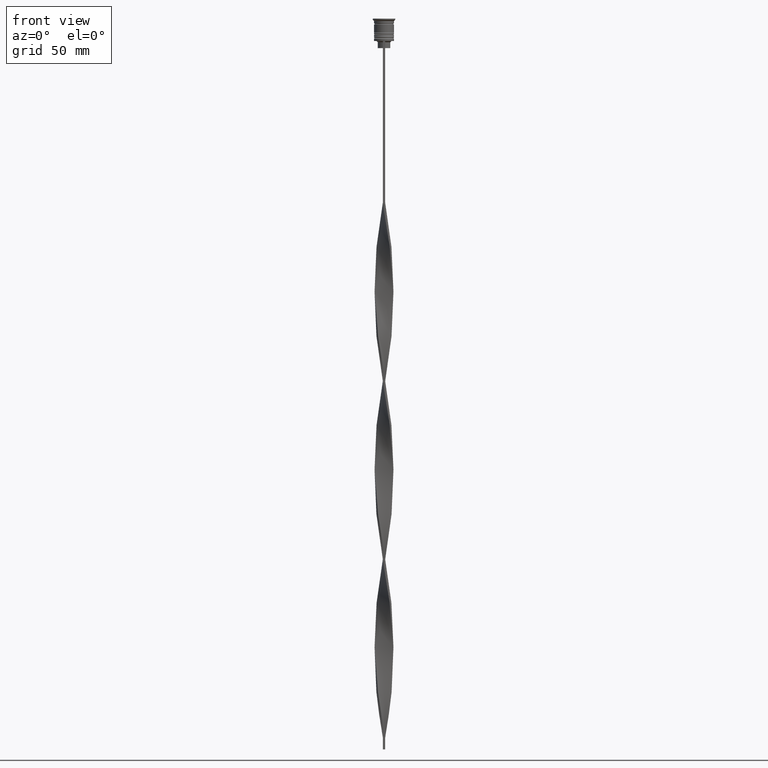
[diagram: clean part render]
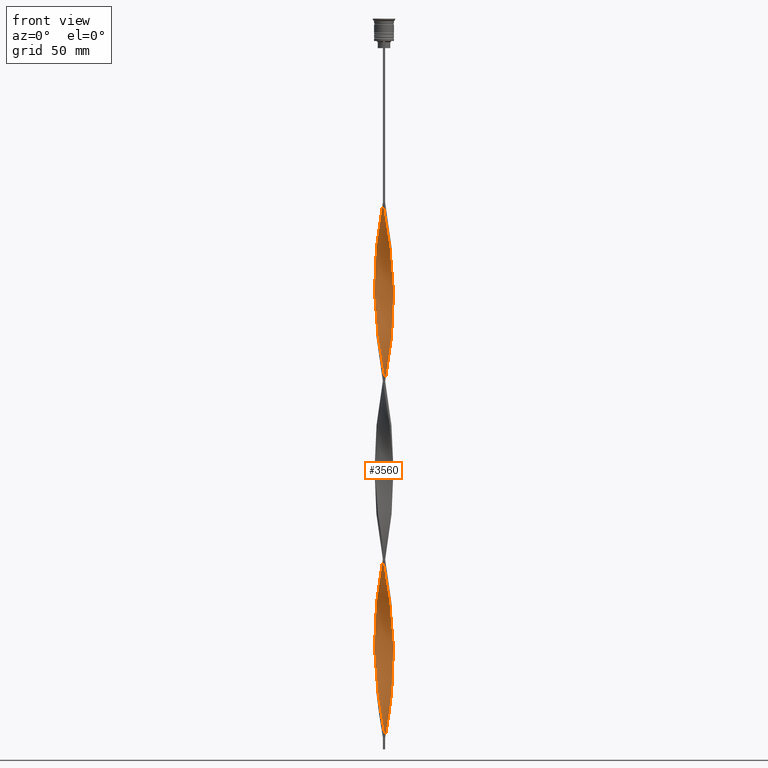
[diagram: same view with one face highlighted and labeled with its STEP entity id]
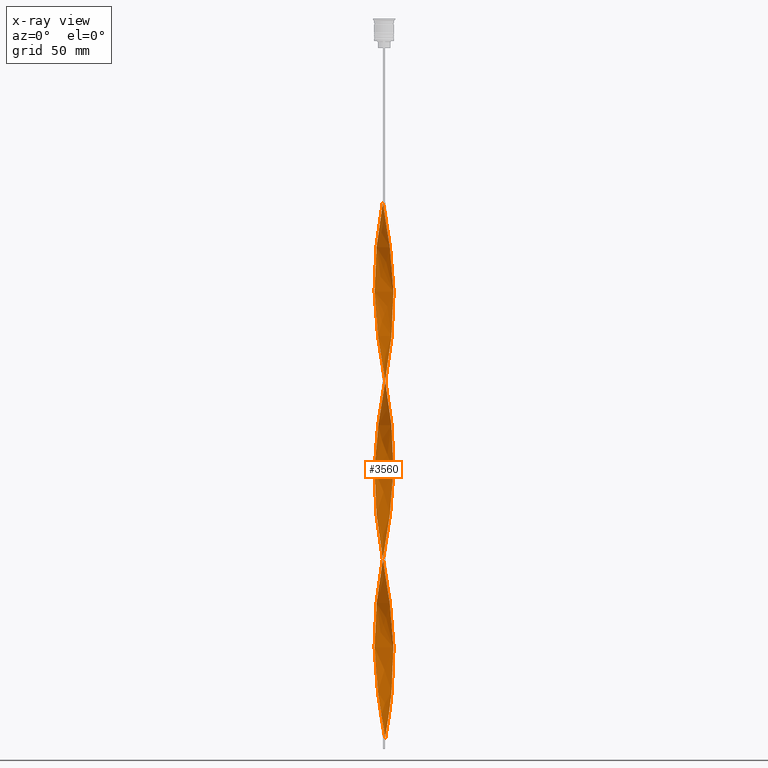
[diagram: x-ray of the same camera — body ghosted, the highlighted face saturated]
A machine part, front view. The second image highlights one B-rep face of the part: STEP entity #3560.
The next image is the same camera in x-ray: the body ghosted, the highlighted face saturated — about 0% of this face is hidden behind the body in this view.
In plain terms, the highlighted face is a freeform B-spline surface patch.
Its self-contained STEP definition (entity closure, byte-faithful):
#7 = CARTESIAN_POINT ( 'NONE',  ( 0.8314494498030657876, -3.958568818774615750, -155.4868421052631220 ) ) ;
#11 = CARTESIAN_POINT ( 'NONE',  ( -2.859221371831710101, 2.861193531974599580, -175.3552631578947398 ) ) ;
#19 = CARTESIAN_POINT ( 'NONE',  ( -2.349288341927600499, -3.292782951704461336, -135.6184210526315894 ) ) ;
#27 = CARTESIAN_POINT ( 'NONE',  ( 3.863941018946714046, -1.148895035284350996, -181.3157894736842195 ) ) ;
#31 = CARTESIAN_POINT ( 'NONE',  ( -3.291162296146088906, 2.351558211267347431, -179.3289473684210691 ) ) ;
#41 = CARTESIAN_POINT ( 'NONE',  ( -4.027627644762845627, -0.1679748646140053203, -113.7631578947368496 ) ) ;
#57 = CARTESIAN_POINT ( 'NONE',  ( 1.771706497669051972, 3.620919232200196625, -296.5526315789473983 ) ) ;
#58 = CARTESIAN_POINT ( 'NONE',  ( -3.462245594293744677, 2.064668361939407948, -181.3157894736842195 ) ) ;
#64 = CARTESIAN_POINT ( 'NONE',  ( 2.615308476010500538, -3.085731170380874300, -167.4078947368420813 ) ) ;
#78 = CARTESIAN_POINT ( 'NONE',  ( -3.876387747932443784, 1.155505650454258459, -187.2763157894736707 ) ) ;
#83 = CARTESIAN_POINT ( 'NONE',  ( -3.945048299290513150, -0.8286096283926639439, -268.7368421052631788 ) ) ;
#98 = CARTESIAN_POINT ( 'NONE',  ( -3.622139992111328866, -1.769209393358442073, -205.1578947368420813 ) ) ;
#114 = CARTESIAN_POINT ( 'NONE',  ( -2.349288341927600499, -3.292782951704461780, -286.6184210526315042 ) ) ;
#121 = CARTESIAN_POINT ( 'NONE',  ( 3.863941018946714934, 1.148895035284348332, -125.6842105263157805 ) ) ;
#127 = CARTESIAN_POINT ( 'NONE',  ( 0.4999999999999994449, -4.000000000000000000, -304.5000000000000000 ) ) ;
#134 = CARTESIAN_POINT ( 'NONE',  ( 2.615308476010500982, 3.085731170380873412, -290.5921052631578050 ) ) ;
#138 = CARTESIAN_POINT ( 'NONE',  ( 2.851421105456868776, 2.849455681240740113, -137.6052631578947398 ) ) ;
#144 = CARTESIAN_POINT ( 'NONE',  ( -3.462245594293745565, -2.064668361939405727, -276.6842105263158373 ) ) ;
#149 = CARTESIAN_POINT ( 'NONE',  ( 1.152832542896751189, -3.877183566532631520, -238.9342105263157805 ) ) ;
#153 = CARTESIAN_POINT ( 'NONE',  ( 3.945048299290513150, -0.8286096283926643880, -264.7631578947368780 ) ) ;
#173 = CARTESIAN_POINT ( 'NONE',  ( -3.622139992111327533, 1.769209393358443627, -101.8421052631579045 ) ) ;
#189 = CARTESIAN_POINT ( 'NONE',  ( -3.959141175778332133, 0.8287197540840015586, -107.8026315789473557 ) ) ;
#204 = CARTESIAN_POINT ( 'NONE',  ( -0.5000000000000000000, 4.000000000000000000, -78.00000000000000000 ) ) ;
#209 = CARTESIAN_POINT ( 'NONE',  ( 3.075191833988900836, -2.606375871620972173, -252.8421052631579187 ) ) ;
#211 =( BOUNDED_CURVE ( )  B_SPLINE_CURVE ( 2, ( #2332, #2023, #1134, #2928, #2354, #1398, #1093, #1751, #2312, #1458, #1150, #756, #3540, #846, #291, #1475, #1514, #3679, #1235, #1773, #2456, #1850, #2437, #3656, #870, #929, #1492, #2101, #2721, #1791, #3021, #270, #3359, #1830, #3386, #555, #3063, #1535, #3303, #2743, #3962, #613, #2704, #2783, #3082, #313, #2763, #3935, #1806, #11, #3003, #31, #332, #2062, #3341, #906, #635, #3984, #2149, #254, #593, #1172, #2393, #3620, #1191, #3038, #1213, #1553, #1254, #3599, #2086, #3325, #576, #2419, #3641, #2121, #888, #381, #2503, #3407, #3515, #149, #1368, #1596, #1045, #2884, #3236, #3707, #746, #2480, #1961, #3848, #763, #2614, #1083, #3729, #444, #1685, #972, #1066, #1990, #2305, #484, #2283, #1869, #953, #2191, #134, #2590, #3219, #57, #2809, #2262, #656, #1887 ),
 .UNSPECIFIED., .F., .T. ) 
 B_SPLINE_CURVE_WITH_KNOTS ( ( 3, 2, 2, 2, 2, 2, 2, 2, 2, 2, 2, 2, 2, 2, 2, 2, 2, 2, 2, 2, 2, 2, 2, 2, 2, 2, 2, 2, 2, 2, 2, 2, 2, 2, 2, 2, 2, 2, 2, 2, 2, 2, 2, 2, 2, 2, 2, 2, 2, 2, 2, 2, 2, 2, 2, 2, 2, 3 ),
 ( 0.000000000000000000, 0.01315789473684210453, 0.02631578947368420907, 0.03947368421052631360, 0.05263157894736841813, 0.06578947368421052266, 0.07894736842105262720, 0.09210526315789473173, 0.1052631578947368363, 0.1184210526315789408, 0.1315789473684210453, 0.1447368421052631637, 0.1578947368421052544, 0.1710526315789473728, 0.1842105263157894635, 0.1973684210526315541, 0.2105263157894736725, 0.2236842105263157909, 0.2368421052631578816, 0.2500000000000000000, 0.2631578947368420907, 0.2763157894736842368, 0.2894736842105263275, 0.3026315789473684181, 0.3157894736842105088, 0.3289473684210526550, 0.3421052631578947456, 0.3552631578947368918, 0.3684210526315789269, 0.3815789473684210731, 0.3947368421052631082, 0.4078947368421052544, 0.4210526315789473450, 0.4342105263157895467, 0.4473684210526315819, 0.4605263157894736725, 0.4736842105263157632, 0.4868421052631579093, 0.5000000000000000000, 0.5131578947368421462, 0.5263157894736841813, 0.5394736842105263275, 0.5526315789473684736, 0.5657894736842105088, 0.5789473684210526550, 0.5921052631578946901, 0.6052631578947368363, 0.6184210526315789824, 0.6315789473684210176, 0.6447368421052631637, 0.6578947368421053099, 0.6710526315789473450, 0.6842105263157894912, 0.6973684210526315264, 0.7105263157894737835, 0.7236842105263158187, 0.7368421052631578538, 0.7500000000000000000 ),
 .UNSPECIFIED. ) 
 CURVE ( )  GEOMETRIC_REPRESENTATION_ITEM ( )  RATIONAL_B_SPLINE_CURVE ( ( 1.000000000000000000, 0.9965844930066698470, 1.000000000000000000, 0.9965844930066698470, 1.000000000000000000, 0.9965844930066698470, 1.000000000000000000, 0.9965844930066698470, 1.000000000000000000, 0.9965844930066698470, 1.000000000000000000, 0.9965844930066698470, 1.000000000000000000, 0.9965844930066698470, 1.000000000000000000, 0.9965844930066698470, 1.000000000000000000, 0.9965844930066698470, 1.000000000000000000, 0.9965844930066698470, 1.000000000000000000, 0.9965844930066698470, 1.000000000000000000, 0.9965844930066698470, 1.000000000000000000, 0.9965844930066698470, 1.000000000000000000, 0.9965844930066698470, 1.000000000000000000, 0.9965844930066698470, 1.000000000000000000, 0.9965844930066698470, 1.000000000000000000, 0.9965844930066698470, 1.000000000000000000, 0.9965844930066698470, 1.000000000000000000, 0.9965844930066698470, 1.000000000000000000, 0.9965844930066698470, 1.000000000000000000, 0.9965844930066698470, 1.000000000000000000, 0.9965844930066698470, 1.000000000000000000, 0.9965844930066698470, 1.000000000000000000, 0.9965844930066698470, 1.000000000000000000, 0.9965844930066698470, 1.000000000000000000, 0.9965844930066698470, 1.000000000000000000, 0.9965844930066698470, 1.000000000000000000, 0.9965844930066698470, 1.000000000000000000, 0.9965844930066698470, 1.000000000000000000, 0.9965844930066698470, 1.000000000000000000, 0.9965844930066698470, 1.000000000000000000, 0.9965844930066698470, 1.000000000000000000, 0.9965844930066698470, 1.000000000000000000, 0.9965844930066698470, 1.000000000000000000, 0.9965844930066698470, 1.000000000000000000, 0.9965844930066698470, 1.000000000000000000, 0.9965844930066698470, 1.000000000000000000, 0.9965844930066698470, 1.000000000000000000, 0.9965844930066698470, 1.000000000000000000, 0.9965844930066698470, 1.000000000000000000, 0.9965844930066698470, 1.000000000000000000, 0.9965844930066698470, 1.000000000000000000, 0.9965844930066698470, 1.000000000000000000, 0.9965844930066698470, 1.000000000000000000, 0.9965844930066698470, 1.000000000000000000, 0.9965844930066698470, 1.000000000000000000, 0.9965844930066698470, 1.000000000000000000, 0.9965844930066698470, 1.000000000000000000, 0.9965844930066698470, 1.000000000000000000, 0.9965844930066698470, 1.000000000000000000, 0.9965844930066698470, 1.000000000000000000, 0.9965844930066698470, 1.000000000000000000, 0.9965844930066698470, 1.000000000000000000, 0.9965844930066698470, 1.000000000000000000, 0.9965844930066698470, 1.000000000000000000, 0.9965844930066698470, 1.000000000000000000, 0.9965844930066698470, 1.000000000000000000 ) ) 
 REPRESENTATION_ITEM ( '' )  );
#226 = CARTESIAN_POINT ( 'NONE',  ( 3.633328892441398672, -1.777778512611468020, -258.8026315789473415 ) ) ;
#248 = CARTESIAN_POINT ( 'NONE',  ( 0.4989459690400818714, 4.014053836277128973, -223.0394736842104919 ) ) ;
#253 = CARTESIAN_POINT ( 'NONE',  ( 4.013708850648581183, 0.5017136063310719818, -191.2499999999999432 ) ) ;
#254 = CARTESIAN_POINT ( 'NONE',  ( -4.041546438877109182, -0.1657638771030590097, -195.2236842105263008 ) ) ;
#267 = CARTESIAN_POINT ( 'NONE',  ( -3.945048299290513150, -0.8286096283926639439, -268.7368421052631788 ) ) ;
#270 = CARTESIAN_POINT ( 'NONE',  ( 2.615308476010500982, 3.085731170380873412, -139.5921052631579187 ) ) ;
#271 = CARTESIAN_POINT ( 'NONE',  ( 3.633328892441398672, -1.777778512611468020, -107.8026315789473557 ) ) ;
#289 = CARTESIAN_POINT ( 'NONE',  ( 4.041546438877107406, -0.1657638771030640612, -187.2763157894736707 ) ) ;
#291 = CARTESIAN_POINT ( 'NONE',  ( 3.462245594293745121, -2.064668361939406616, -105.8157894736842053 ) ) ;
#292 = CARTESIAN_POINT ( 'NONE',  ( 4.027627644762845627, -0.1679748646140058199, -117.7368421052631646 ) ) ;
#311 = CARTESIAN_POINT ( 'NONE',  ( -1.151559012824296735, 3.863147918470522413, -232.9736842105263293 ) ) ;
#313 = CARTESIAN_POINT ( 'NONE',  ( -1.775272850193346796, 3.634553836156355633, -167.4078947368420813 ) ) ;
#320 = CARTESIAN_POINT ( 'NONE',  ( -2.071744419492576039, 3.474111446233965506, -238.9342105263157805 ) ) ;
#328 = CARTESIAN_POINT ( 'NONE',  ( 1.152832542896753409, 3.877183566532631520, -219.0657894736841627 ) ) ;
#332 = CARTESIAN_POINT ( 'NONE',  ( -3.462245594293744677, 2.064668361939407948, -181.3157894736842195 ) ) ;
#339 = CARTESIAN_POINT ( 'NONE',  ( -3.291162296146090682, -2.351558211267345211, -127.6710526315789593 ) ) ;
#355 = CARTESIAN_POINT ( 'NONE',  ( -3.075191833988900836, 2.606375871620972173, -177.3421052631579187 ) ) ;
#363 = CARTESIAN_POINT ( 'NONE',  ( 0.8314494498030657876, -3.958568818774615750, -155.4868421052631504 ) ) ;
#381 = CARTESIAN_POINT ( 'NONE',  ( -0.1685505501969328801, -4.041431181225382474, -230.9868421052631220 ) ) ;
#382 = CARTESIAN_POINT ( 'NONE',  ( -4.013708850648581183, 0.5017136063310734251, -191.2499999999999432 ) ) ;
#387 = CARTESIAN_POINT ( 'NONE',  ( -3.075191833988901280, -2.606375871620971285, -129.6578947368421098 ) ) ;
#400 = CARTESIAN_POINT ( 'NONE',  ( 2.349288341927600499, -3.292782951704461780, -246.8815789473684674 ) ) ;
#404 = CARTESIAN_POINT ( 'NONE',  ( 0.1685505501969314646, -4.041431181225382474, -302.5131578947368212 ) ) ;
#414 = CARTESIAN_POINT ( 'NONE',  ( 1.152832542896750967, -3.877183566532631520, -238.9342105263157521 ) ) ;
#429 = CARTESIAN_POINT ( 'NONE',  ( -1.464052696545050436, -3.755868701344492688, -292.5789473684210407 ) ) ;
#433 = CARTESIAN_POINT ( 'NONE',  ( -2.615308476010501870, -3.085731170380873412, -215.0921052631578902 ) ) ;
#439 = CARTESIAN_POINT ( 'NONE',  ( -2.062280596060475091, -3.463668393930408040, -288.6052631578947398 ) ) ;
#444 = CARTESIAN_POINT ( 'NONE',  ( 4.027627644762845627, -0.1679748646140058199, -268.7368421052631788 ) ) ;
#450 = CARTESIAN_POINT ( 'NONE',  ( 0.5000000000000005551, 4.000000000000000000, -304.5000000000000000 ) ) ;
#456 = CARTESIAN_POINT ( 'NONE',  ( -3.876387747932445116, -1.155505650454255573, -270.7236842105263008 ) ) ;
#466 = CARTESIAN_POINT ( 'NONE',  ( 1.151559012824297401, 3.863147918470522413, -300.5263157894736992 ) ) ;
#484 = CARTESIAN_POINT ( 'NONE',  ( 3.622139992111327977, 1.769209393358442517, -280.6578947368420813 ) ) ;
#485 = CARTESIAN_POINT ( 'NONE',  ( -4.000343807327721102, 0.4972418155935317552, -109.7894736842105203 ) ) ;
#493 = CARTESIAN_POINT ( 'NONE',  ( -3.075191833988901280, -2.606375871620971285, -129.6578947368421098 ) ) ;
#514 = CARTESIAN_POINT ( 'NONE',  ( -3.475539122107559997, 2.069348470232189818, -99.85526315789472562 ) ) ;
#529 = CARTESIAN_POINT ( 'NONE',  ( 4.041546438877108294, 0.1657638771030611746, -270.7236842105262440 ) ) ;
#543 = CARTESIAN_POINT ( 'NONE',  ( 4.027627644762845627, 0.1679748646140039048, -189.2631578947368496 ) ) ;
#550 = CARTESIAN_POINT ( 'NONE',  ( -2.071744419492575595, 3.474111446233965506, -238.9342105263157521 ) ) ;
#555 = CARTESIAN_POINT ( 'NONE',  ( 1.471668575845527682, 3.767727018166428188, -147.5394736842105203 ) ) ;
#573 = CARTESIAN_POINT ( 'NONE',  ( 0.8258892559684176682, 3.945618701404880024, -221.0526315789473983 ) ) ;
#576 = CARTESIAN_POINT ( 'NONE',  ( -1.771706497669052194, -3.620919232200196181, -221.0526315789473983 ) ) ;
#591 = CARTESIAN_POINT ( 'NONE',  ( 3.768740862115095513, -1.469070316484698990, -179.3289473684210691 ) ) ;
#593 = CARTESIAN_POINT ( 'NONE',  ( -4.000343807327721102, -0.4972418155935300343, -197.2105263157894797 ) ) ;
#594 = CARTESIAN_POINT ( 'NONE',  ( 3.945048299290513150, -0.8286096283926643880, -113.7631578947368496 ) ) ;
#610 = CARTESIAN_POINT ( 'NONE',  ( 0.1651977094215772157, 4.027742508751256167, -225.0263157894736992 ) ) ;
#613 = CARTESIAN_POINT ( 'NONE',  ( -0.4989459690400802616, 4.014053836277129861, -159.4605263157894797 ) ) ;
#623 = CARTESIAN_POINT ( 'NONE',  ( 4.000343807327721102, -0.4972418155935313666, -185.2894736842105203 ) ) ;
#632 = CARTESIAN_POINT ( 'NONE',  ( 1.471668575845525240, -3.767727018166429076, -159.4605263157894797 ) ) ;
#635 = CARTESIAN_POINT ( 'NONE',  ( -3.945048299290513150, 0.8286096283926659423, -189.2631578947368496 ) ) ;
#642 = CARTESIAN_POINT ( 'NONE',  ( 1.464052696545052212, 3.755868701344492244, -217.0789473684210407 ) ) ;
#656 = CARTESIAN_POINT ( 'NONE',  ( 0.8314494498030685632, 3.958568818774615750, -302.5131578947368212 ) ) ;
#657 = CARTESIAN_POINT ( 'NONE',  ( 1.464052696545049548, -3.755868701344493132, -89.92105263157894512 ) ) ;
#662 = CARTESIAN_POINT ( 'NONE',  ( 0.8258892559684176682, 3.945618701404880024, -221.0526315789473983 ) ) ;
#677 = CARTESIAN_POINT ( 'NONE',  ( -2.859221371831710545, 2.861193531974599580, -175.3552631578947398 ) ) ;
#686 = CARTESIAN_POINT ( 'NONE',  ( 3.291162296146092014, 2.351558211267342990, -203.1710526315789593 ) ) ;
#699 = CARTESIAN_POINT ( 'NONE',  ( 3.475539122107559997, 2.069348470232189818, -131.6447368421052602 ) ) ;
#706 = CARTESIAN_POINT ( 'NONE',  ( -4.027627644762845627, -0.1679748646140053203, -264.7631578947368780 ) ) ;
#716 = CARTESIAN_POINT ( 'NONE',  ( 1.471668575845527682, 3.767727018166428188, -147.5394736842105203 ) ) ;
#730 = CARTESIAN_POINT ( 'NONE',  ( -4.000343807327721102, -0.4972418155935300343, -197.2105263157894797 ) ) ;
#746 = CARTESIAN_POINT ( 'NONE',  ( 3.075191833988900836, -2.606375871620972173, -252.8421052631579187 ) ) ;
#752 = CARTESIAN_POINT ( 'NONE',  ( 3.622139992111327977, 1.769209393358442517, -129.6578947368421098 ) ) ;
#756 = CARTESIAN_POINT ( 'NONE',  ( 2.859221371831710545, -2.861193531974598692, -99.85526315789472562 ) ) ;
#761 = VERTEX_POINT ( 'NONE', #1804 ) ;
#763 = CARTESIAN_POINT ( 'NONE',  ( 3.754858320186921894, -1.466642081532862241, -260.7894736842105203 ) ) ;
#764 = CARTESIAN_POINT ( 'NONE',  ( -3.281536428505396952, 2.341264331166398982, -97.86842105263157521 ) ) ;
#768 = CARTESIAN_POINT ( 'NONE',  ( -3.291162296146090682, -2.351558211267345211, -127.6710526315789735 ) ) ;
#773 = CARTESIAN_POINT ( 'NONE',  ( -4.041546438877108294, 0.1657638771030618130, -262.7763157894736423 ) ) ;
#785 = CARTESIAN_POINT ( 'NONE',  ( -4.000343807327721102, 0.4972418155935317552, -109.7894736842105203 ) ) ;
#805 = CARTESIAN_POINT ( 'NONE',  ( -3.462245594293745565, -2.064668361939405727, -125.6842105263157805 ) ) ;
#823 = CARTESIAN_POINT ( 'NONE',  ( -1.471668575845526350, 3.767727018166428632, -83.96052631578946546 ) ) ;
#838 = CARTESIAN_POINT ( 'NONE',  ( -3.754858320186921894, -1.466642081532861797, -121.7105263157894797 ) ) ;
#843 = CARTESIAN_POINT ( 'NONE',  ( 0.8314494498030685632, 3.958568818774615750, -302.5131578947367643 ) ) ;
#846 = CARTESIAN_POINT ( 'NONE',  ( 3.291162296146090682, -2.351558211267345211, -103.8289473684210407 ) ) ;
#850 =( BOUNDED_SURFACE ( )  B_SPLINE_SURFACE ( 1, 2, ( 
 ( #2438, #2394, #889, #2103, #3936, #3342, #657, #2122, #1173, #3708, #3621, #3022, #3039, #2481, #1554, #271, #954, #3064, #594, #1807, #292, #1515, #2785, #907, #121, #2870, #752, #699, #3730, #3425, #138, #2542, #1597, #993, #2251, #716, #1337, #1967, #3185, #3502, #3808, #2563, #1035, #2192, #3166, #2231, #1633, #1948, #2266, #677, #355, #3792, #58, #3479, #1050, #78, #2521, #382, #1614, #2887, #730, #1300, #2810, #3751, #98, #2577, #3128, #3448, #3462, #433, #1656, #3773, #1929, #1909, #1575, #2211, #1280, #2831, #2504, #3148, #1016, #414, #1354, #973, #1890, #400, #2849, #1316, #209, #1394, #2021, #226, #1090, #3223, #153, #1432, #2038, #529, #3558, #1416, #1690, #3208, #2925, #2657, #2943, #3597, #2310, #1713, #2597, #3520, #3913, #1748, #466, #843, #450 ),
 ( #1072, #1452, #3282, #823, #2978, #2683, #1372, #1149, #2328, #2372, #3268, #514, #173, #1671, #3535, #189, #785, #2620, #3853, #1995, #2962, #3888, #2904, #3830, #805, #768, #493, #2289, #2640, #1979, #3870, #3243, #1107, #1129, #1734, #2350, #3581, #2143, #3000, #7, #1209, #632, #1230, #903, #3382, #3037, #1474, #2119, #3933, #3956, #1550, #591, #27, #3337, #2452, #289, #1826, #253, #2476, #2779, #3300, #1805, #3357, #3078, #2435, #1847, #2701, #1511, #2741, #3654, #3704, #328, #573, #3981, #610, #1251, #3019, #3059, #311, #2059, #1532, #550, #1170, #3675, #2390, #2099, #3617, #2758, #1767, #924, #864, #1189, #2082, #2416, #3321, #1789, #267, #1490, #2720, #3638, #885, #1032, #2249, #969, #2847, #114, #3421, #3460, #429, #2828, #3748, #2805, #1944, #3477, #2559 ) ),
 .UNSPECIFIED., .F., .F., .F. ) 
 B_SPLINE_SURFACE_WITH_KNOTS ( ( 2, 2 ),
 ( 3, 2, 2, 2, 2, 2, 2, 2, 2, 2, 2, 2, 2, 2, 2, 2, 2, 2, 2, 2, 2, 2, 2, 2, 2, 2, 2, 2, 2, 2, 2, 2, 2, 2, 2, 2, 2, 2, 2, 2, 2, 2, 2, 2, 2, 2, 2, 2, 2, 2, 2, 2, 2, 2, 2, 2, 2, 3 ),
 ( 0.000000000000000000, 1.000000000000000000 ),
 ( 0.000000000000000000, 0.01315789473684210453, 0.02631578947368420907, 0.03947368421052631360, 0.05263157894736841813, 0.06578947368421052266, 0.07894736842105262720, 0.09210526315789473173, 0.1052631578947368363, 0.1184210526315789408, 0.1315789473684210453, 0.1447368421052631637, 0.1578947368421052544, 0.1710526315789473728, 0.1842105263157894635, 0.1973684210526315819, 0.2105263157894736725, 0.2236842105263157909, 0.2368421052631578816, 0.2500000000000000000, 0.2631578947368420907, 0.2763157894736842368, 0.2894736842105263275, 0.3026315789473684181, 0.3157894736842105088, 0.3289473684210526550, 0.3421052631578947456, 0.3552631578947368363, 0.3684210526315789269, 0.3815789473684210731, 0.3947368421052631637, 0.4078947368421052544, 0.4210526315789473450, 0.4342105263157894912, 0.4473684210526315819, 0.4605263157894736725, 0.4736842105263157632, 0.4868421052631579093, 0.5000000000000000000, 0.5131578947368421462, 0.5263157894736841813, 0.5394736842105263275, 0.5526315789473684736, 0.5657894736842105088, 0.5789473684210526550, 0.5921052631578946901, 0.6052631578947368363, 0.6184210526315789824, 0.6315789473684210176, 0.6447368421052631637, 0.6578947368421053099, 0.6710526315789473450, 0.6842105263157894912, 0.6973684210526315264, 0.7105263157894736725, 0.7236842105263158187, 0.7368421052631578538, 0.7500000000000000000 ),
 .UNSPECIFIED. ) 
 GEOMETRIC_REPRESENTATION_ITEM ( )  RATIONAL_B_SPLINE_SURFACE ( (
 ( 1.000000000000000000, 0.9965844930066698470, 1.000000000000000000, 0.9965844930066698470, 1.000000000000000000, 0.9965844930066698470, 1.000000000000000000, 0.9965844930066698470, 1.000000000000000000, 0.9965844930066698470, 1.000000000000000000, 0.9965844930066698470, 1.000000000000000000, 0.9965844930066698470, 1.000000000000000000, 0.9965844930066698470, 1.000000000000000000, 0.9965844930066698470, 1.000000000000000000, 0.9965844930066698470, 1.000000000000000000, 0.9965844930066698470, 1.000000000000000000, 0.9965844930066698470, 1.000000000000000000, 0.9965844930066698470, 1.000000000000000000, 0.9965844930066698470, 1.000000000000000000, 0.9965844930066698470, 1.000000000000000000, 0.9965844930066698470, 1.000000000000000000, 0.9965844930066698470, 1.000000000000000000, 0.9965844930066698470, 1.000000000000000000, 0.9965844930066698470, 1.000000000000000000, 0.9965844930066698470, 1.000000000000000000, 0.9965844930066698470, 1.000000000000000000, 0.9965844930066698470, 1.000000000000000000, 0.9965844930066698470, 1.000000000000000000, 0.9965844930066698470, 1.000000000000000000, 0.9965844930066698470, 1.000000000000000000, 0.9965844930066698470, 1.000000000000000000, 0.9965844930066698470, 1.000000000000000000, 0.9965844930066698470, 1.000000000000000000, 0.9965844930066698470, 1.000000000000000000, 0.9965844930066698470, 1.000000000000000000, 0.9965844930066698470, 1.000000000000000000, 0.9965844930066698470, 1.000000000000000000, 0.9965844930066698470, 1.000000000000000000, 0.9965844930066698470, 1.000000000000000000, 0.9965844930066698470, 1.000000000000000000, 0.9965844930066698470, 1.000000000000000000, 0.9965844930066698470, 1.000000000000000000, 0.9965844930066698470, 1.000000000000000000, 0.9965844930066698470, 1.000000000000000000, 0.9965844930066698470, 1.000000000000000000, 0.9965844930066698470, 1.000000000000000000, 0.9965844930066698470, 1.000000000000000000, 0.9965844930066698470, 1.000000000000000000, 0.9965844930066698470, 1.000000000000000000, 0.9965844930066698470, 1.000000000000000000, 0.9965844930066698470, 1.000000000000000000, 0.9965844930066698470, 1.000000000000000000, 0.9965844930066698470, 1.000000000000000000, 0.9965844930066698470, 1.000000000000000000, 0.9965844930066698470, 1.000000000000000000, 0.9965844930066698470, 1.000000000000000000, 0.9965844930066698470, 1.000000000000000000, 0.9965844930066698470, 1.000000000000000000, 0.9965844930066698470, 1.000000000000000000, 0.9965844930066698470, 1.000000000000000000, 0.9965844930066698470, 1.000000000000000000, 0.9965844930066698470, 1.000000000000000000),
 ( 1.000000000000000000, 0.9965844930066698470, 1.000000000000000000, 0.9965844930066698470, 1.000000000000000000, 0.9965844930066698470, 1.000000000000000000, 0.9965844930066698470, 1.000000000000000000, 0.9965844930066698470, 1.000000000000000000, 0.9965844930066698470, 1.000000000000000000, 0.9965844930066698470, 1.000000000000000000, 0.9965844930066698470, 1.000000000000000000, 0.9965844930066698470, 1.000000000000000000, 0.9965844930066698470, 1.000000000000000000, 0.9965844930066698470, 1.000000000000000000, 0.9965844930066698470, 1.000000000000000000, 0.9965844930066698470, 1.000000000000000000, 0.9965844930066698470, 1.000000000000000000, 0.9965844930066698470, 1.000000000000000000, 0.9965844930066698470, 1.000000000000000000, 0.9965844930066698470, 1.000000000000000000, 0.9965844930066698470, 1.000000000000000000, 0.9965844930066698470, 1.000000000000000000, 0.9965844930066698470, 1.000000000000000000, 0.9965844930066698470, 1.000000000000000000, 0.9965844930066698470, 1.000000000000000000, 0.9965844930066698470, 1.000000000000000000, 0.9965844930066698470, 1.000000000000000000, 0.9965844930066698470, 1.000000000000000000, 0.9965844930066698470, 1.000000000000000000, 0.9965844930066698470, 1.000000000000000000, 0.9965844930066698470, 1.000000000000000000, 0.9965844930066698470, 1.000000000000000000, 0.9965844930066698470, 1.000000000000000000, 0.9965844930066698470, 1.000000000000000000, 0.9965844930066698470, 1.000000000000000000, 0.9965844930066698470, 1.000000000000000000, 0.9965844930066698470, 1.000000000000000000, 0.9965844930066698470, 1.000000000000000000, 0.9965844930066698470, 1.000000000000000000, 0.9965844930066698470, 1.000000000000000000, 0.9965844930066698470, 1.000000000000000000, 0.9965844930066698470, 1.000000000000000000, 0.9965844930066698470, 1.000000000000000000, 0.9965844930066698470, 1.000000000000000000, 0.9965844930066698470, 1.000000000000000000, 0.9965844930066698470, 1.000000000000000000, 0.9965844930066698470, 1.000000000000000000, 0.9965844930066698470, 1.000000000000000000, 0.9965844930066698470, 1.000000000000000000, 0.9965844930066698470, 1.000000000000000000, 0.9965844930066698470, 1.000000000000000000, 0.9965844930066698470, 1.000000000000000000, 0.9965844930066698470, 1.000000000000000000, 0.9965844930066698470, 1.000000000000000000, 0.9965844930066698470, 1.000000000000000000, 0.9965844930066698470, 1.000000000000000000, 0.9965844930066698470, 1.000000000000000000, 0.9965844930066698470, 1.000000000000000000, 0.9965844930066698470, 1.000000000000000000, 0.9965844930066698470, 1.000000000000000000) ) ) 
 REPRESENTATION_ITEM ( '' )  SURFACE ( )  );
#864 = CARTESIAN_POINT ( 'NONE',  ( -3.863941018946714490, 1.148895035284349442, -256.8157894736842195 ) ) ;
#870 = CARTESIAN_POINT ( 'NONE',  ( 3.863941018946714934, 1.148895035284348332, -125.6842105263157805 ) ) ;
#879 = EDGE_LOOP ( 'NONE', ( #1063, #2650, #3709, #1056 ) ) ;
#885 = CARTESIAN_POINT ( 'NONE',  ( -3.462245594293745565, -2.064668361939405727, -276.6842105263158373 ) ) ;
#888 = CARTESIAN_POINT ( 'NONE',  ( -0.5000000000000000000, -4.000000000000000000, -228.9999999999999716 ) ) ;
#889 = CARTESIAN_POINT ( 'NONE',  ( 0.1651977094215744957, -4.027742508751256167, -81.97368421052631504 ) ) ;
#903 = CARTESIAN_POINT ( 'NONE',  ( 2.071744419492574707, -3.474111446233965950, -163.4342105263157805 ) ) ;
#906 = CARTESIAN_POINT ( 'NONE',  ( -3.876387747932443784, 1.155505650454258459, -187.2763157894736707 ) ) ;
#907 = CARTESIAN_POINT ( 'NONE',  ( 3.959141175778332133, 0.8287197540840011145, -123.6973684210526443 ) ) ;
#916 = CARTESIAN_POINT ( 'NONE',  ( 3.622139992111327533, -1.769209393358443627, -177.3421052631579187 ) ) ;
#924 = CARTESIAN_POINT ( 'NONE',  ( -3.768740862115096402, 1.469070316484696770, -254.8289473684210407 ) ) ;
#929 = CARTESIAN_POINT ( 'NONE',  ( 3.768740862115096402, 1.469070316484696548, -127.6710526315789593 ) ) ;
#939 = CARTESIAN_POINT ( 'NONE',  ( -3.945048299290513150, -0.8286096283926639439, -117.7368421052631646 ) ) ;
#953 = CARTESIAN_POINT ( 'NONE',  ( 3.087533734903234350, 2.613180192100606813, -286.6184210526315042 ) ) ;
#954 = CARTESIAN_POINT ( 'NONE',  ( 3.754858320186921894, -1.466642081532862241, -109.7894736842105203 ) ) ;
#961 = CARTESIAN_POINT ( 'NONE',  ( -1.152832542896752965, -3.877183566532631076, -143.5657894736841911 ) ) ;
#969 = CARTESIAN_POINT ( 'NONE',  ( -2.859221371831710989, -2.861193531974598692, -282.6447368421052033 ) ) ;
#972 = CARTESIAN_POINT ( 'NONE',  ( 4.000343807327721102, 0.4972418155935313666, -272.7105263157894797 ) ) ;
#973 = CARTESIAN_POINT ( 'NONE',  ( 1.775272850193347685, -3.634553836156354745, -242.9078947368421098 ) ) ;
#979 = CARTESIAN_POINT ( 'NONE',  ( -1.775272850193347685, -3.634553836156354745, -139.5921052631579187 ) ) ;
#993 = CARTESIAN_POINT ( 'NONE',  ( 2.071744419492577371, 3.474111446233965061, -143.5657894736842195 ) ) ;
#1002 = CARTESIAN_POINT ( 'NONE',  ( -4.013708850648581183, -0.5017136063310724259, -266.7499999999999432 ) ) ;
#1016 = CARTESIAN_POINT ( 'NONE',  ( 0.8258892559684165580, -3.945618701404880024, -236.9473684210526301 ) ) ;
#1032 = CARTESIAN_POINT ( 'NONE',  ( -3.291162296146090682, -2.351558211267345211, -278.6710526315789025 ) ) ;
#1035 = CARTESIAN_POINT ( 'NONE',  ( -0.8258892559684163359, 3.945618701404880913, -161.4473684210526301 ) ) ;
#1039 = CARTESIAN_POINT ( 'NONE',  ( -0.8258892559684172241, -3.945618701404880024, -296.5526315789473983 ) ) ;
#1045 = CARTESIAN_POINT ( 'NONE',  ( 2.062280596060474647, -3.463668393930408484, -244.8947368421052886 ) ) ;
#1050 = CARTESIAN_POINT ( 'NONE',  ( -3.754858320186921894, 1.466642081532861797, -185.2894736842105203 ) ) ;
#1056 = ORIENTED_EDGE ( 'NONE', *, *, #2237, .F. ) ;
#1063 = ORIENTED_EDGE ( 'NONE', *, *, #2436, .T. ) ;
#1066 = CARTESIAN_POINT ( 'NONE',  ( 3.959141175778332133, 0.8287197540840012255, -274.6973684210526017 ) ) ;
#1072 = CARTESIAN_POINT ( 'NONE',  ( -0.5000000000000000000, 4.000000000000000000, -78.00000000000000000 ) ) ;
#1078 = CARTESIAN_POINT ( 'NONE',  ( -3.959141175778332133, 0.8287197540840016696, -258.8026315789473415 ) ) ;
#1083 = CARTESIAN_POINT ( 'NONE',  ( 3.945048299290513150, -0.8286096283926643880, -264.7631578947368780 ) ) ;
#1084 = CARTESIAN_POINT ( 'NONE',  ( -2.615308476010500982, 3.085731170380873412, -91.90789473684209554 ) ) ;
#1090 = CARTESIAN_POINT ( 'NONE',  ( 3.754858320186921894, -1.466642081532862241, -260.7894736842105203 ) ) ;
#1093 = CARTESIAN_POINT ( 'NONE',  ( 1.464052696545049548, -3.755868701344493132, -89.92105263157894512 ) ) ;
#1103 = LINE ( 'NONE', #2716, #2927 ) ;
#1107 = CARTESIAN_POINT ( 'NONE',  ( -1.464052696545050436, -3.755868701344492688, -141.5789473684210407 ) ) ;
#1123 = CARTESIAN_POINT ( 'NONE',  ( -1.151559012824296735, 3.863147918470522413, -81.97368421052631504 ) ) ;
#1129 = CARTESIAN_POINT ( 'NONE',  ( -1.152832542896752965, -3.877183566532631076, -143.5657894736842195 ) ) ;
#1134 = CARTESIAN_POINT ( 'NONE',  ( 0.1651977094215744957, -4.027742508751256167, -81.97368421052631504 ) ) ;
#1146 = CARTESIAN_POINT ( 'NONE',  ( 1.775272850193348129, 3.634553836156354745, -215.0921052631578902 ) ) ;
#1149 = CARTESIAN_POINT ( 'NONE',  ( -2.615308476010501426, 3.085731170380873412, -91.90789473684208133 ) ) ;
#1150 = CARTESIAN_POINT ( 'NONE',  ( 2.604254856879656188, -3.076988241839530236, -97.86842105263157521 ) ) ;
#1170 = CARTESIAN_POINT ( 'NONE',  ( -2.343526447751538733, 3.279921308307419903, -240.9210526315789309 ) ) ;
#1172 = CARTESIAN_POINT ( 'NONE',  ( -3.959141175778333022, -0.8287197540840007814, -199.1973684210526017 ) ) ;
#1173 = CARTESIAN_POINT ( 'NONE',  ( 2.062280596060474647, -3.463668393930408484, -93.89473684210526017 ) ) ;
#1189 = CARTESIAN_POINT ( 'NONE',  ( -3.959141175778332133, 0.8287197540840015586, -258.8026315789473415 ) ) ;
#1191 = CARTESIAN_POINT ( 'NONE',  ( -3.622139992111328866, -1.769209393358442073, -205.1578947368420813 ) ) ;
#1209 = CARTESIAN_POINT ( 'NONE',  ( 1.151559012824296291, -3.863147918470523301, -157.4736842105263293 ) ) ;
#1213 = CARTESIAN_POINT ( 'NONE',  ( -3.281536428505399172, -2.341264331166395873, -209.1315789473684390 ) ) ;
#1222 = CARTESIAN_POINT ( 'NONE',  ( -2.604254856879656632, -3.076988241839529348, -133.6315789473684390 ) ) ;
#1230 = CARTESIAN_POINT ( 'NONE',  ( 1.771706497669051084, -3.620919232200197069, -161.4473684210526301 ) ) ;
#1235 = CARTESIAN_POINT ( 'NONE',  ( 3.945048299290513150, -0.8286096283926643880, -113.7631578947368496 ) ) ;
#1243 = CARTESIAN_POINT ( 'NONE',  ( -3.462245594293745565, -2.064668361939405727, -125.6842105263157805 ) ) ;
#1251 = CARTESIAN_POINT ( 'NONE',  ( -0.1685505501969309927, 4.041431181225382474, -227.0131578947368212 ) ) ;
#1254 = CARTESIAN_POINT ( 'NONE',  ( -2.851421105456868776, -2.849455681240739668, -213.1052631578947398 ) ) ;
#1266 = CARTESIAN_POINT ( 'NONE',  ( -0.1651977094215750508, -4.027742508751256167, -149.5263157894736707 ) ) ;
#1280 = CARTESIAN_POINT ( 'NONE',  ( -0.5000000000000000000, -4.000000000000000000, -228.9999999999999716 ) ) ;
#1286 = CARTESIAN_POINT ( 'NONE',  ( -3.876387747932445116, -1.155505650454255573, -119.7236842105263150 ) ) ;
#1300 = CARTESIAN_POINT ( 'NONE',  ( -3.959141175778333022, -0.8287197540840007814, -199.1973684210526017 ) ) ;
#1305 = CARTESIAN_POINT ( 'NONE',  ( -3.754858320186921894, -1.466642081532861797, -272.7105263157894797 ) ) ;
#1316 = CARTESIAN_POINT ( 'NONE',  ( 2.859221371831710989, -2.861193531974598692, -250.8552631578947683 ) ) ;
#1337 = CARTESIAN_POINT ( 'NONE',  ( 1.151559012824297401, 3.863147918470522413, -149.5263157894736707 ) ) ;
#1354 = CARTESIAN_POINT ( 'NONE',  ( 1.464052696545049548, -3.755868701344493132, -240.9210526315789309 ) ) ;
#1362 = CARTESIAN_POINT ( 'NONE',  ( -3.633328892441399116, -1.777778512611467576, -274.6973684210526017 ) ) ;
#1368 = CARTESIAN_POINT ( 'NONE',  ( 1.464052696545049548, -3.755868701344493132, -240.9210526315789309 ) ) ;
#1369 = CARTESIAN_POINT ( 'NONE',  ( -3.087533734903234350, 2.613180192100606813, -95.88157894736841058 ) ) ;
#1372 = CARTESIAN_POINT ( 'NONE',  ( -2.343526447751538733, 3.279921308307419903, -89.92105263157894512 ) ) ;
#1377 = CARTESIAN_POINT ( 'NONE',  ( -2.604254856879656632, -3.076988241839529348, -284.6315789473683822 ) ) ;
#1387 = CARTESIAN_POINT ( 'NONE',  ( -3.622139992111327533, 1.769209393358443627, -101.8421052631579045 ) ) ;
#1394 = CARTESIAN_POINT ( 'NONE',  ( 3.291162296146090682, -2.351558211267345211, -254.8289473684210407 ) ) ;
#1398 = CARTESIAN_POINT ( 'NONE',  ( 1.152832542896751189, -3.877183566532631520, -87.93421052631578050 ) ) ;
#1416 = CARTESIAN_POINT ( 'NONE',  ( 3.959141175778332133, 0.8287197540840011145, -274.6973684210525448 ) ) ;
#1432 = CARTESIAN_POINT ( 'NONE',  ( 4.013708850648581183, -0.5017136063310728700, -266.7499999999999432 ) ) ;
#1452 = CARTESIAN_POINT ( 'NONE',  ( -0.8314494498030671199, 3.958568818774615750, -79.98684210526316463 ) ) ;
#1458 = CARTESIAN_POINT ( 'NONE',  ( 2.349288341927600499, -3.292782951704461336, -95.88157894736841058 ) ) ;
#1471 = CARTESIAN_POINT ( 'NONE',  ( -0.1685505501969309927, 4.041431181225382474, -227.0131578947368212 ) ) ;
#1474 = CARTESIAN_POINT ( 'NONE',  ( 2.851421105456868332, -2.849455681240740557, -169.3947368421052602 ) ) ;
#1475 = CARTESIAN_POINT ( 'NONE',  ( 3.633328892441399116, -1.777778512611468020, -107.8026315789473557 ) ) ;
#1490 = CARTESIAN_POINT ( 'NONE',  ( -3.876387747932445116, -1.155505650454255795, -270.7236842105262440 ) ) ;
#1492 = CARTESIAN_POINT ( 'NONE',  ( 3.622139992111327977, 1.769209393358442517, -129.6578947368421098 ) ) ;
#1493 = FACE_OUTER_BOUND ( 'NONE', #879, .T. ) ;
#1511 = CARTESIAN_POINT ( 'NONE',  ( 2.349288341927602719, 3.292782951704460892, -211.1184210526315326 ) ) ;
#1514 = CARTESIAN_POINT ( 'NONE',  ( 3.754858320186921894, -1.466642081532862241, -109.7894736842105203 ) ) ;
#1515 = CARTESIAN_POINT ( 'NONE',  ( 4.041546438877108294, 0.1657638771030611746, -119.7236842105263150 ) ) ;
#1532 = CARTESIAN_POINT ( 'NONE',  ( -1.771706497669051306, 3.620919232200196625, -236.9473684210526301 ) ) ;
#1535 = CARTESIAN_POINT ( 'NONE',  ( 0.8314494498030685632, 3.958568818774615750, -151.5131578947368496 ) ) ;
#1543 = CARTESIAN_POINT ( 'NONE',  ( 2.859221371831710989, 2.861193531974598248, -207.1447368421052317 ) ) ;
#1550 = CARTESIAN_POINT ( 'NONE',  ( 3.622139992111327533, -1.769209393358443627, -177.3421052631579187 ) ) ;
#1553 = CARTESIAN_POINT ( 'NONE',  ( -3.087533734903235683, -2.613180192100605037, -211.1184210526315326 ) ) ;
#1554 = CARTESIAN_POINT ( 'NONE',  ( 3.462245594293745121, -2.064668361939406616, -105.8157894736842053 ) ) ;
#1560 = CARTESIAN_POINT ( 'NONE',  ( 1.152832542896753409, 3.877183566532631520, -219.0657894736841911 ) ) ;
#1575 = CARTESIAN_POINT ( 'NONE',  ( -1.151559012824299399, -3.863147918470521969, -225.0263157894736992 ) ) ;
#1585 = CARTESIAN_POINT ( 'NONE',  ( 2.343526447751538289, -3.279921308307419903, -165.4210526315789593 ) ) ;
#1596 = CARTESIAN_POINT ( 'NONE',  ( 1.775272850193347685, -3.634553836156354745, -242.9078947368421098 ) ) ;
#1597 = CARTESIAN_POINT ( 'NONE',  ( 2.343526447751539177, 3.279921308307419459, -141.5789473684210407 ) ) ;
#1614 = CARTESIAN_POINT ( 'NONE',  ( -4.027627644762845627, 0.1679748646140054313, -193.2368421052631504 ) ) ;
#1633 = CARTESIAN_POINT ( 'NONE',  ( -2.062280596060474647, 3.463668393930408929, -169.3947368421052602 ) ) ;
#1656 = CARTESIAN_POINT ( 'NONE',  ( -2.343526447751540953, -3.279921308307418126, -217.0789473684210407 ) ) ;
#1671 = CARTESIAN_POINT ( 'NONE',  ( -3.768740862115096402, 1.469070316484696770, -103.8289473684210265 ) ) ;
#1685 = CARTESIAN_POINT ( 'NONE',  ( 4.041546438877109182, 0.1657638771030611746, -270.7236842105263008 ) ) ;
#1690 = CARTESIAN_POINT ( 'NONE',  ( 3.863941018946714934, 1.148895035284348332, -276.6842105263158373 ) ) ;
#1707 = CARTESIAN_POINT ( 'NONE',  ( -4.041546438877108294, 0.1657638771030618130, -111.7763157894736850 ) ) ;
#1713 = CARTESIAN_POINT ( 'NONE',  ( 2.615308476010501426, 3.085731170380873412, -290.5921052631577481 ) ) ;
#1717 = CARTESIAN_POINT ( 'NONE',  ( 0.4999999999999994449, -4.000000000000000000, -304.5000000000000000 ) ) ;
#1734 = CARTESIAN_POINT ( 'NONE',  ( -0.8258892559684172241, -3.945618701404880024, -145.5526315789473699 ) ) ;
#1748 = CARTESIAN_POINT ( 'NONE',  ( 1.471668575845527682, 3.767727018166428188, -298.5394736842104635 ) ) ;
#1751 = CARTESIAN_POINT ( 'NONE',  ( 1.775272850193347685, -3.634553836156354745, -91.90789473684209554 ) ) ;
#1761 = CARTESIAN_POINT ( 'NONE',  ( 2.604254856879658409, 3.076988241839528015, -209.1315789473684390 ) ) ;
#1767 = CARTESIAN_POINT ( 'NONE',  ( -3.622139992111327533, 1.769209393358443627, -252.8421052631579187 ) ) ;
#1773 = CARTESIAN_POINT ( 'NONE',  ( 4.013708850648581183, -0.5017136063310728700, -115.7499999999999858 ) ) ;
#1789 = CARTESIAN_POINT ( 'NONE',  ( -4.013708850648581183, -0.5017136063310724259, -266.7499999999999432 ) ) ;
#1791 = CARTESIAN_POINT ( 'NONE',  ( 3.087533734903234350, 2.613180192100606813, -135.6184210526315894 ) ) ;
#1804 = CARTESIAN_POINT ( 'NONE',  ( -0.5000000000000000000, 4.000000000000000000, -78.00000000000000000 ) ) ;
#1805 = CARTESIAN_POINT ( 'NONE',  ( 3.633328892441399116, 1.777778512611467132, -199.1973684210526017 ) ) ;
#1806 = CARTESIAN_POINT ( 'NONE',  ( -2.604254856879654412, 3.076988241839531568, -173.3684210526315610 ) ) ;
#1807 = CARTESIAN_POINT ( 'NONE',  ( 4.013708850648581183, -0.5017136063310728700, -115.7500000000000000 ) ) ;
#1826 = CARTESIAN_POINT ( 'NONE',  ( 4.027627644762845627, 0.1679748646140039048, -189.2631578947368496 ) ) ;
#1830 = CARTESIAN_POINT ( 'NONE',  ( 2.071744419492577816, 3.474111446233965061, -143.5657894736841911 ) ) ;
#1837 = CARTESIAN_POINT ( 'NONE',  ( 3.075191833988901724, 2.606375871620970841, -205.1578947368420813 ) ) ;
#1847 = CARTESIAN_POINT ( 'NONE',  ( 2.859221371831710989, 2.861193531974598248, -207.1447368421052317 ) ) ;
#1850 = CARTESIAN_POINT ( 'NONE',  ( 4.041546438877109182, 0.1657638771030611746, -119.7236842105263150 ) ) ;
#1857 = CARTESIAN_POINT ( 'NONE',  ( -0.8258892559684172241, -3.945618701404880024, -145.5526315789473699 ) ) ;
#1869 = CARTESIAN_POINT ( 'NONE',  ( 3.281536428505397396, 2.341264331166397206, -284.6315789473683822 ) ) ;
#1874 = CARTESIAN_POINT ( 'NONE',  ( -0.5000000000000000000, -4.000000000000000000, -78.00000000000000000 ) ) ;
#1875 = CARTESIAN_POINT ( 'NONE',  ( -0.8314494498030671199, 3.958568818774615750, -230.9868421052631220 ) ) ;
#1887 = CARTESIAN_POINT ( 'NONE',  ( 0.5000000000000005551, 4.000000000000000000, -304.5000000000000000 ) ) ;
#1890 = CARTESIAN_POINT ( 'NONE',  ( 2.062280596060474647, -3.463668393930408484, -244.8947368421052886 ) ) ;
#1899 = CARTESIAN_POINT ( 'NONE',  ( 2.349288341927602719, 3.292782951704460448, -211.1184210526315326 ) ) ;
#1909 = CARTESIAN_POINT ( 'NONE',  ( -1.471668575845526794, -3.767727018166428188, -223.0394736842104635 ) ) ;
#1916 = CARTESIAN_POINT ( 'NONE',  ( -1.775272850193347685, -3.634553836156354745, -290.5921052631578050 ) ) ;
#1929 = CARTESIAN_POINT ( 'NONE',  ( -1.771706497669052194, -3.620919232200196181, -221.0526315789473983 ) ) ;
#1944 = CARTESIAN_POINT ( 'NONE',  ( -0.1651977094215750508, -4.027742508751256167, -300.5263157894736992 ) ) ;
#1948 = CARTESIAN_POINT ( 'NONE',  ( -2.349288341927599610, 3.292782951704463112, -171.3815789473684390 ) ) ;
#1961 = CARTESIAN_POINT ( 'NONE',  ( 3.462245594293745121, -2.064668361939406616, -256.8157894736842195 ) ) ;
#1967 = CARTESIAN_POINT ( 'NONE',  ( 0.8314494498030685632, 3.958568818774615750, -151.5131578947368496 ) ) ;
#1970 = CARTESIAN_POINT ( 'NONE',  ( -3.768740862115096402, 1.469070316484696770, -254.8289473684210407 ) ) ;
#1979 = CARTESIAN_POINT ( 'NONE',  ( -2.349288341927600499, -3.292782951704461780, -135.6184210526315610 ) ) ;
#1985 = CARTESIAN_POINT ( 'NONE',  ( -1.152832542896752965, -3.877183566532631076, -294.5657894736841627 ) ) ;
#1990 = CARTESIAN_POINT ( 'NONE',  ( 3.863941018946714934, 1.148895035284348332, -276.6842105263158373 ) ) ;
#1995 = CARTESIAN_POINT ( 'NONE',  ( -4.013708850648581183, -0.5017136063310724259, -115.7500000000000000 ) ) ;
#2001 = CARTESIAN_POINT ( 'NONE',  ( 0.5000000000000005551, 4.000000000000000000, -304.5000000000000000 ) ) ;
#2021 = CARTESIAN_POINT ( 'NONE',  ( 3.462245594293745121, -2.064668361939406616, -256.8157894736842195 ) ) ;
#2023 = CARTESIAN_POINT ( 'NONE',  ( -0.1685505501969328801, -4.041431181225382474, -79.98684210526316463 ) ) ;
#2038 = CARTESIAN_POINT ( 'NONE',  ( 4.027627644762845627, -0.1679748646140058199, -268.7368421052631788 ) ) ;
#2053 = CARTESIAN_POINT ( 'NONE',  ( 1.771706497669051084, -3.620919232200197069, -161.4473684210526301 ) ) ;
#2059 = CARTESIAN_POINT ( 'NONE',  ( -1.471668575845526350, 3.767727018166428632, -234.9605263157894228 ) ) ;
#2062 = CARTESIAN_POINT ( 'NONE',  ( -3.633328892441399116, 1.777778512611468464, -183.3026315789473699 ) ) ;
#2082 = CARTESIAN_POINT ( 'NONE',  ( -4.000343807327721102, 0.4972418155935317552, -260.7894736842105203 ) ) ;
#2084 = EDGE_CURVE ( 'NONE', #3280, #2611, #3990, .T. ) ;
#2086 = CARTESIAN_POINT ( 'NONE',  ( -2.343526447751540953, -3.279921308307418126, -217.0789473684210407 ) ) ;
#2096 = DIRECTION ( 'NONE',  ( 0.000000000000000000, 1.000000000000000000, 0.000000000000000000 ) ) ;
#2099 = CARTESIAN_POINT ( 'NONE',  ( -3.087533734903234350, 2.613180192100606813, -246.8815789473684674 ) ) ;
#2101 = CARTESIAN_POINT ( 'NONE',  ( 3.475539122107559553, 2.069348470232189374, -131.6447368421052602 ) ) ;
#2103 = CARTESIAN_POINT ( 'NONE',  ( 0.4989459690400814273, -4.014053836277128973, -83.96052631578946546 ) ) ;
#2119 = CARTESIAN_POINT ( 'NONE',  ( 3.087533734903233906, -2.613180192100608146, -171.3815789473684390 ) ) ;
#2121 = CARTESIAN_POINT ( 'NONE',  ( -0.8314494498030690073, -3.958568818774615750, -227.0131578947368212 ) ) ;
#2122 = CARTESIAN_POINT ( 'NONE',  ( 1.775272850193347685, -3.634553836156354745, -91.90789473684208133 ) ) ;
#2131 = CARTESIAN_POINT ( 'NONE',  ( 3.633328892441399116, 1.777778512611467132, -199.1973684210526017 ) ) ;
#2143 = CARTESIAN_POINT ( 'NONE',  ( 0.1685505501969314646, -4.041431181225382474, -151.5131578947368496 ) ) ;
#2149 = CARTESIAN_POINT ( 'NONE',  ( -4.027627644762845627, 0.1679748646140054313, -193.2368421052631504 ) ) ;
#2158 = CARTESIAN_POINT ( 'NONE',  ( 3.087533734903234350, -2.613180192100608146, -171.3815789473684390 ) ) ;
#2180 = CARTESIAN_POINT ( 'NONE',  ( 2.071744419492575151, -3.474111446233965950, -163.4342105263157805 ) ) ;
#2191 = CARTESIAN_POINT ( 'NONE',  ( 2.851421105456868776, 2.849455681240740113, -288.6052631578947398 ) ) ;
#2192 = CARTESIAN_POINT ( 'NONE',  ( -1.152832542896750079, 3.877183566532631964, -163.4342105263157805 ) ) ;
#2197 = CARTESIAN_POINT ( 'NONE',  ( 3.876387747932445560, 1.155505650454253352, -195.2236842105263008 ) ) ;
#2211 = CARTESIAN_POINT ( 'NONE',  ( -0.8314494498030688963, -3.958568818774615750, -227.0131578947368212 ) ) ;
#2231 = CARTESIAN_POINT ( 'NONE',  ( -1.775272850193346796, 3.634553836156355633, -167.4078947368420813 ) ) ;
#2237 = EDGE_CURVE ( 'NONE', #2871, #3280, #211, .T. ) ;
#2240 = CARTESIAN_POINT ( 'NONE',  ( -3.291162296146090682, -2.351558211267345211, -278.6710526315789025 ) ) ;
#2249 = CARTESIAN_POINT ( 'NONE',  ( -3.075191833988901280, -2.606375871620971285, -280.6578947368420813 ) ) ;
#2251 = CARTESIAN_POINT ( 'NONE',  ( 1.771706497669051972, 3.620919232200196625, -145.5526315789473699 ) ) ;
#2255 = CARTESIAN_POINT ( 'NONE',  ( -2.343526447751538733, 3.279921308307419903, -240.9210526315789309 ) ) ;
#2262 = CARTESIAN_POINT ( 'NONE',  ( 1.151559012824297401, 3.863147918470522413, -300.5263157894736992 ) ) ;
#2266 = CARTESIAN_POINT ( 'NONE',  ( -2.604254856879654412, 3.076988241839531568, -173.3684210526315610 ) ) ;
#2283 = CARTESIAN_POINT ( 'NONE',  ( 3.475539122107559553, 2.069348470232189374, -282.6447368421052033 ) ) ;
#2285 = CARTESIAN_POINT ( 'NONE',  ( -3.475539122107559553, 2.069348470232189374, -99.85526315789472562 ) ) ;
#2289 = CARTESIAN_POINT ( 'NONE',  ( -2.859221371831710989, -2.861193531974598692, -131.6447368421052602 ) ) ;
#2296 = CARTESIAN_POINT ( 'NONE',  ( -3.087533734903234350, 2.613180192100606813, -246.8815789473684390 ) ) ;
#2305 = CARTESIAN_POINT ( 'NONE',  ( 3.768740862115096402, 1.469070316484696548, -278.6710526315789025 ) ) ;
#2310 = CARTESIAN_POINT ( 'NONE',  ( 2.851421105456868776, 2.849455681240740113, -288.6052631578947398 ) ) ;
#2312 = CARTESIAN_POINT ( 'NONE',  ( 2.062280596060474647, -3.463668393930408484, -93.89473684210526017 ) ) ;
#2328 = CARTESIAN_POINT ( 'NONE',  ( -2.851421105456868332, 2.849455681240740557, -93.89473684210526017 ) ) ;
#2332 = CARTESIAN_POINT ( 'NONE',  ( -0.5000000000000000000, -4.000000000000000000, -78.00000000000000000 ) ) ;
#2350 = CARTESIAN_POINT ( 'NONE',  ( -0.4989459690400829261, -4.014053836277128973, -147.5394736842105203 ) ) ;
#2354 = CARTESIAN_POINT ( 'NONE',  ( 0.8258892559684165580, -3.945618701404880024, -85.94736842105263008 ) ) ;
#2368 = CARTESIAN_POINT ( 'NONE',  ( -1.771706497669051306, 3.620919232200196625, -236.9473684210526301 ) ) ;
#2372 = CARTESIAN_POINT ( 'NONE',  ( -3.087533734903234350, 2.613180192100606813, -95.88157894736841058 ) ) ;
#2390 = CARTESIAN_POINT ( 'NONE',  ( -2.851421105456868332, 2.849455681240740557, -244.8947368421052886 ) ) ;
#2393 = CARTESIAN_POINT ( 'NONE',  ( -3.863941018946714490, -1.148895035284349442, -201.1842105263158089 ) ) ;
#2394 = CARTESIAN_POINT ( 'NONE',  ( -0.1685505501969329079, -4.041431181225382474, -79.98684210526316463 ) ) ;
#2416 = CARTESIAN_POINT ( 'NONE',  ( -4.041546438877107406, 0.1657638771030618408, -262.7763157894735855 ) ) ;
#2419 = CARTESIAN_POINT ( 'NONE',  ( -1.471668575845526794, -3.767727018166428188, -223.0394736842104919 ) ) ;
#2435 = CARTESIAN_POINT ( 'NONE',  ( 3.075191833988901724, 2.606375871620970841, -205.1578947368420813 ) ) ;
#2436 = EDGE_CURVE ( 'NONE', #2871, #761, #1103, .T. ) ;
#2437 = CARTESIAN_POINT ( 'NONE',  ( 4.000343807327721102, 0.4972418155935313666, -121.7105263157894797 ) ) ;
#2438 = CARTESIAN_POINT ( 'NONE',  ( -0.5000000000000000000, -4.000000000000000000, -78.00000000000000000 ) ) ;
#2446 = CARTESIAN_POINT ( 'NONE',  ( 3.281536428505396064, -2.341264331166400314, -173.3684210526315610 ) ) ;
#2452 = CARTESIAN_POINT ( 'NONE',  ( 4.000343807327721102, -0.4972418155935313666, -185.2894736842105203 ) ) ;
#2456 = CARTESIAN_POINT ( 'NONE',  ( 4.027627644762845627, -0.1679748646140058199, -117.7368421052631646 ) ) ;
#2465 = CARTESIAN_POINT ( 'NONE',  ( -3.633328892441399116, -1.777778512611467576, -123.6973684210526443 ) ) ;
#2476 = CARTESIAN_POINT ( 'NONE',  ( 3.945048299290513150, 0.8286096283926643880, -193.2368421052631504 ) ) ;
#2480 = CARTESIAN_POINT ( 'NONE',  ( 3.291162296146090682, -2.351558211267345211, -254.8289473684210407 ) ) ;
#2481 = CARTESIAN_POINT ( 'NONE',  ( 3.291162296146090682, -2.351558211267345211, -103.8289473684210265 ) ) ;
#2489 = CARTESIAN_POINT ( 'NONE',  ( 3.462245594293745121, 2.064668361939406616, -201.1842105263158089 ) ) ;
#2503 = CARTESIAN_POINT ( 'NONE',  ( 0.1651977094215744957, -4.027742508751256167, -232.9736842105263293 ) ) ;
#2504 = CARTESIAN_POINT ( 'NONE',  ( 0.1651977094215744957, -4.027742508751256167, -232.9736842105263293 ) ) ;
#2509 = CARTESIAN_POINT ( 'NONE',  ( -0.4989459690400829817, -4.014053836277128973, -147.5394736842105203 ) ) ;
#2521 = CARTESIAN_POINT ( 'NONE',  ( -3.945048299290513150, 0.8286096283926659423, -189.2631578947368496 ) ) ;
#2527 = CARTESIAN_POINT ( 'NONE',  ( -2.349288341927600499, -3.292782951704461336, -286.6184210526315042 ) ) ;
#2542 = CARTESIAN_POINT ( 'NONE',  ( 2.615308476010501426, 3.085731170380873412, -139.5921052631579187 ) ) ;
#2559 = CARTESIAN_POINT ( 'NONE',  ( 0.4999999999999994449, -4.000000000000000000, -304.5000000000000000 ) ) ;
#2563 = CARTESIAN_POINT ( 'NONE',  ( -0.4989459690400802061, 4.014053836277129861, -159.4605263157894797 ) ) ;
#2577 = CARTESIAN_POINT ( 'NONE',  ( -3.475539122107560441, -2.069348470232189374, -207.1447368421052317 ) ) ;
#2583 = CARTESIAN_POINT ( 'NONE',  ( -3.075191833988901280, -2.606375871620971285, -280.6578947368420813 ) ) ;
#2590 = CARTESIAN_POINT ( 'NONE',  ( 2.343526447751539177, 3.279921308307419459, -292.5789473684210407 ) ) ;
#2597 = CARTESIAN_POINT ( 'NONE',  ( 2.343526447751539177, 3.279921308307419459, -292.5789473684210407 ) ) ;
#2602 = CARTESIAN_POINT ( 'NONE',  ( -3.622139992111327533, 1.769209393358443627, -252.8421052631579187 ) ) ;
#2611 = VERTEX_POINT ( 'NONE', #2776 ) ;
#2614 = CARTESIAN_POINT ( 'NONE',  ( 3.876387747932444228, -1.155505650454256017, -262.7763157894736423 ) ) ;
#2616 = CARTESIAN_POINT ( 'NONE',  ( -3.863941018946714490, 1.148895035284349442, -105.8157894736842053 ) ) ;
#2620 = CARTESIAN_POINT ( 'NONE',  ( -4.041546438877107406, 0.1657638771030618408, -111.7763157894736850 ) ) ;
#2640 = CARTESIAN_POINT ( 'NONE',  ( -2.604254856879656632, -3.076988241839529348, -133.6315789473684390 ) ) ;
#2650 = ORIENTED_EDGE ( 'NONE', *, *, #3893, .T. ) ;
#2657 = CARTESIAN_POINT ( 'NONE',  ( 3.475539122107559997, 2.069348470232189818, -282.6447368421052033 ) ) ;
#2676 = CARTESIAN_POINT ( 'NONE',  ( 3.475539122107559109, -2.069348470232190262, -175.3552631578947398 ) ) ;
#2683 = CARTESIAN_POINT ( 'NONE',  ( -2.071744419492575595, 3.474111446233965506, -87.93421052631578050 ) ) ;
#2696 = CARTESIAN_POINT ( 'NONE',  ( 1.471668575845525240, -3.767727018166429076, -159.4605263157894797 ) ) ;
#2701 = CARTESIAN_POINT ( 'NONE',  ( 2.604254856879658409, 3.076988241839528015, -209.1315789473684390 ) ) ;
#2704 = CARTESIAN_POINT ( 'NONE',  ( -0.8258892559684163359, 3.945618701404880913, -161.4473684210526301 ) ) ;
#2716 = CARTESIAN_POINT ( 'NONE',  ( -0.5000000000000000000, -4.000000000000000000, -78.00000000000000000 ) ) ;
#2720 = CARTESIAN_POINT ( 'NONE',  ( -3.754858320186921894, -1.466642081532861797, -272.7105263157894797 ) ) ;
#2721 = CARTESIAN_POINT ( 'NONE',  ( 3.281536428505397396, 2.341264331166397206, -133.6315789473684390 ) ) ;
#2741 = CARTESIAN_POINT ( 'NONE',  ( 2.062280596060475979, 3.463668393930407596, -213.1052631578947398 ) ) ;
#2743 = CARTESIAN_POINT ( 'NONE',  ( 0.1685505501969342401, 4.041431181225382474, -155.4868421052631504 ) ) ;
#2758 = CARTESIAN_POINT ( 'NONE',  ( -3.475539122107559997, 2.069348470232189818, -250.8552631578947683 ) ) ;
#2763 = CARTESIAN_POINT ( 'NONE',  ( -2.062280596060474647, 3.463668393930408929, -169.3947368421052602 ) ) ;
#2772 = CARTESIAN_POINT ( 'NONE',  ( 0.1651977094215772157, 4.027742508751256167, -225.0263157894736992 ) ) ;
#2776 = CARTESIAN_POINT ( 'NONE',  ( 0.4999999999999994449, -4.000000000000000000, -304.5000000000000000 ) ) ;
#2779 = CARTESIAN_POINT ( 'NONE',  ( 3.876387747932445560, 1.155505650454253574, -195.2236842105263008 ) ) ;
#2783 = CARTESIAN_POINT ( 'NONE',  ( -1.152832542896750301, 3.877183566532631964, -163.4342105263157805 ) ) ;
#2785 = CARTESIAN_POINT ( 'NONE',  ( 4.000343807327721102, 0.4972418155935313666, -121.7105263157894797 ) ) ;
#2793 = CARTESIAN_POINT ( 'NONE',  ( -2.062280596060475091, -3.463668393930408040, -137.6052631578947398 ) ) ;
#2805 = CARTESIAN_POINT ( 'NONE',  ( -0.4989459690400829261, -4.014053836277128973, -298.5394736842104635 ) ) ;
#2809 = CARTESIAN_POINT ( 'NONE',  ( 1.471668575845527682, 3.767727018166428188, -298.5394736842104635 ) ) ;
#2810 = CARTESIAN_POINT ( 'NONE',  ( -3.863941018946714490, -1.148895035284349442, -201.1842105263158089 ) ) ;
#2818 = CARTESIAN_POINT ( 'NONE',  ( 2.062280596060475979, 3.463668393930407596, -213.1052631578947398 ) ) ;
#2828 = CARTESIAN_POINT ( 'NONE',  ( -1.152832542896752965, -3.877183566532631076, -294.5657894736841627 ) ) ;
#2831 = CARTESIAN_POINT ( 'NONE',  ( -0.1685505501969329079, -4.041431181225382474, -230.9868421052631220 ) ) ;
#2837 = CARTESIAN_POINT ( 'NONE',  ( -3.281536428505396952, 2.341264331166398982, -248.8684210526315610 ) ) ;
#2847 = CARTESIAN_POINT ( 'NONE',  ( -2.604254856879656632, -3.076988241839529348, -284.6315789473683822 ) ) ;
#2849 = CARTESIAN_POINT ( 'NONE',  ( 2.604254856879656188, -3.076988241839530236, -248.8684210526315610 ) ) ;
#2870 = CARTESIAN_POINT ( 'NONE',  ( 3.768740862115096402, 1.469070316484696548, -127.6710526315789735 ) ) ;
#2871 = VERTEX_POINT ( 'NONE', #1874 ) ;
#2877 = CARTESIAN_POINT ( 'NONE',  ( -1.464052696545050436, -3.755868701344492688, -292.5789473684210407 ) ) ;
#2884 = CARTESIAN_POINT ( 'NONE',  ( 2.349288341927600499, -3.292782951704461336, -246.8815789473684390 ) ) ;
#2887 = CARTESIAN_POINT ( 'NONE',  ( -4.041546438877108294, -0.1657638771030589819, -195.2236842105263008 ) ) ;
#2904 = CARTESIAN_POINT ( 'NONE',  ( -3.754858320186921894, -1.466642081532861797, -121.7105263157894797 ) ) ;
#2921 = CARTESIAN_POINT ( 'NONE',  ( -2.071744419492576039, 3.474111446233965506, -87.93421052631578050 ) ) ;
#2925 = CARTESIAN_POINT ( 'NONE',  ( 3.622139992111327977, 1.769209393358442517, -280.6578947368420813 ) ) ;
#2927 = VECTOR ( 'NONE', #2096, 1000.000000000000000 ) ;
#2928 = CARTESIAN_POINT ( 'NONE',  ( 0.4989459690400814829, -4.014053836277128973, -83.96052631578946546 ) ) ;
#2943 = CARTESIAN_POINT ( 'NONE',  ( 3.281536428505397396, 2.341264331166397206, -284.6315789473683822 ) ) ;
#2962 = CARTESIAN_POINT ( 'NONE',  ( -3.945048299290513150, -0.8286096283926639439, -117.7368421052631646 ) ) ;
#2978 = CARTESIAN_POINT ( 'NONE',  ( -1.771706497669051306, 3.620919232200196625, -85.94736842105263008 ) ) ;
#2994 = CARTESIAN_POINT ( 'NONE',  ( 4.013708850648581183, 0.5017136063310718708, -191.2499999999999716 ) ) ;
#3000 = CARTESIAN_POINT ( 'NONE',  ( 0.4999999999999994449, -4.000000000000000000, -153.5000000000000000 ) ) ;
#3003 = CARTESIAN_POINT ( 'NONE',  ( -3.075191833988900836, 2.606375871620972173, -177.3421052631579187 ) ) ;
#3019 = CARTESIAN_POINT ( 'NONE',  ( -0.5000000000000000000, 4.000000000000000000, -228.9999999999999716 ) ) ;
#3021 = CARTESIAN_POINT ( 'NONE',  ( 2.851421105456868776, 2.849455681240740113, -137.6052631578947398 ) ) ;
#3022 = CARTESIAN_POINT ( 'NONE',  ( 2.859221371831710989, -2.861193531974598692, -99.85526315789472562 ) ) ;
#3037 = CARTESIAN_POINT ( 'NONE',  ( 2.615308476010500538, -3.085731170380873856, -167.4078947368420813 ) ) ;
#3038 = CARTESIAN_POINT ( 'NONE',  ( -3.475539122107559997, -2.069348470232188930, -207.1447368421052317 ) ) ;
#3039 = CARTESIAN_POINT ( 'NONE',  ( 3.075191833988900836, -2.606375871620972173, -101.8421052631579045 ) ) ;
#3059 = CARTESIAN_POINT ( 'NONE',  ( -0.8314494498030671199, 3.958568818774615750, -230.9868421052631220 ) ) ;
#3063 = CARTESIAN_POINT ( 'NONE',  ( 1.151559012824297401, 3.863147918470522413, -149.5263157894736707 ) ) ;
#3064 = CARTESIAN_POINT ( 'NONE',  ( 3.876387747932444228, -1.155505650454256239, -111.7763157894736850 ) ) ;
#3070 = CARTESIAN_POINT ( 'NONE',  ( -1.151559012824296735, 3.863147918470522413, -232.9736842105263293 ) ) ;
#3078 = CARTESIAN_POINT ( 'NONE',  ( 3.291162296146092014, 2.351558211267342990, -203.1710526315789309 ) ) ;
#3082 = CARTESIAN_POINT ( 'NONE',  ( -1.464052696545049548, 3.755868701344493132, -165.4210526315789593 ) ) ;
#3089 = CARTESIAN_POINT ( 'NONE',  ( 2.851421105456868332, -2.849455681240740557, -169.3947368421052602 ) ) ;
#3111 = CARTESIAN_POINT ( 'NONE',  ( -1.471668575845526350, 3.767727018166428632, -234.9605263157894228 ) ) ;
#3128 = CARTESIAN_POINT ( 'NONE',  ( -3.281536428505399172, -2.341264331166395873, -209.1315789473684390 ) ) ;
#3138 = CARTESIAN_POINT ( 'NONE',  ( 0.1685505501969314646, -4.041431181225382474, -151.5131578947368496 ) ) ;
#3148 = CARTESIAN_POINT ( 'NONE',  ( 0.4989459690400814273, -4.014053836277128973, -234.9605263157894228 ) ) ;
#3155 = CARTESIAN_POINT ( 'NONE',  ( -3.863941018946714490, 1.148895035284349442, -256.8157894736842195 ) ) ;
#3166 = CARTESIAN_POINT ( 'NONE',  ( -1.464052696545049548, 3.755868701344493132, -165.4210526315789593 ) ) ;
#3171 = CARTESIAN_POINT ( 'NONE',  ( -3.475539122107559553, 2.069348470232189374, -250.8552631578947398 ) ) ;
#3185 = CARTESIAN_POINT ( 'NONE',  ( 0.5000000000000005551, 4.000000000000000000, -153.5000000000000000 ) ) ;
#3194 = CARTESIAN_POINT ( 'NONE',  ( -4.000343807327721102, 0.4972418155935317552, -260.7894736842105203 ) ) ;
#3208 = CARTESIAN_POINT ( 'NONE',  ( 3.768740862115096402, 1.469070316484696548, -278.6710526315789025 ) ) ;
#3219 = CARTESIAN_POINT ( 'NONE',  ( 2.071744419492577816, 3.474111446233965061, -294.5657894736841627 ) ) ;
#3220 = CARTESIAN_POINT ( 'NONE',  ( -0.8314494498030671199, 3.958568818774615750, -79.98684210526316463 ) ) ;
#3223 = CARTESIAN_POINT ( 'NONE',  ( 3.876387747932444228, -1.155505650454256239, -262.7763157894735855 ) ) ;
#3227 = CARTESIAN_POINT ( 'NONE',  ( 0.5000000000000002220, 1.333333333333333481, -304.5000000000000000 ) ) ;
#3229 = CARTESIAN_POINT ( 'NONE',  ( -0.4989459690400829817, -4.014053836277128973, -298.5394736842104635 ) ) ;
#3236 = CARTESIAN_POINT ( 'NONE',  ( 2.604254856879656188, -3.076988241839530236, -248.8684210526315610 ) ) ;
#3237 = CARTESIAN_POINT ( 'NONE',  ( -3.768740862115096402, 1.469070316484696770, -103.8289473684210407 ) ) ;
#3243 = CARTESIAN_POINT ( 'NONE',  ( -1.775272850193347685, -3.634553836156354745, -139.5921052631579187 ) ) ;
#3268 = CARTESIAN_POINT ( 'NONE',  ( -3.281536428505396952, 2.341264331166398982, -97.86842105263157521 ) ) ;
#3269 = CARTESIAN_POINT ( 'NONE',  ( 0.4999999999999997780, -1.333333333333333481, -304.5000000000000000 ) ) ;
#3279 = CARTESIAN_POINT ( 'NONE',  ( -1.471668575845526350, 3.767727018166428632, -83.96052631578946546 ) ) ;
#3280 = VERTEX_POINT ( 'NONE', #3285 ) ;
#3282 = CARTESIAN_POINT ( 'NONE',  ( -1.151559012824296735, 3.863147918470522413, -81.97368421052631504 ) ) ;
#3285 = CARTESIAN_POINT ( 'NONE',  ( 0.5000000000000005551, 4.000000000000000000, -304.5000000000000000 ) ) ;
#3295 = CARTESIAN_POINT ( 'NONE',  ( 0.4999999999999994449, -4.000000000000000000, -153.5000000000000000 ) ) ;
#3300 = CARTESIAN_POINT ( 'NONE',  ( 3.754858320186922338, 1.466642081532860464, -197.2105263157894797 ) ) ;
#3303 = CARTESIAN_POINT ( 'NONE',  ( 0.5000000000000005551, 4.000000000000000000, -153.5000000000000000 ) ) ;
#3321 = CARTESIAN_POINT ( 'NONE',  ( -4.027627644762845627, -0.1679748646140053203, -264.7631578947368780 ) ) ;
#3325 = CARTESIAN_POINT ( 'NONE',  ( -2.071744419492578260, -3.474111446233964617, -219.0657894736841911 ) ) ;
#3337 = CARTESIAN_POINT ( 'NONE',  ( 3.959141175778333022, -0.8287197540840020027, -183.3026315789473699 ) ) ;
#3341 = CARTESIAN_POINT ( 'NONE',  ( -3.754858320186921894, 1.466642081532861797, -185.2894736842105203 ) ) ;
#3342 = CARTESIAN_POINT ( 'NONE',  ( 1.152832542896750967, -3.877183566532631520, -87.93421052631578050 ) ) ;
#3357 = CARTESIAN_POINT ( 'NONE',  ( 3.462245594293745121, 2.064668361939406616, -201.1842105263158089 ) ) ;
#3359 = CARTESIAN_POINT ( 'NONE',  ( 2.343526447751539177, 3.279921308307419459, -141.5789473684210407 ) ) ;
#3368 = CARTESIAN_POINT ( 'NONE',  ( -0.5000000000000000000, 4.000000000000000000, -228.9999999999999716 ) ) ;
#3382 = CARTESIAN_POINT ( 'NONE',  ( 2.343526447751538289, -3.279921308307419903, -165.4210526315789593 ) ) ;
#3386 = CARTESIAN_POINT ( 'NONE',  ( 1.771706497669051972, 3.620919232200196625, -145.5526315789473699 ) ) ;
#3393 = CARTESIAN_POINT ( 'NONE',  ( 4.041546438877108294, -0.1657638771030640612, -187.2763157894736707 ) ) ;
#3407 = CARTESIAN_POINT ( 'NONE',  ( 0.4989459690400814829, -4.014053836277128973, -234.9605263157894228 ) ) ;
#3413 = CARTESIAN_POINT ( 'NONE',  ( 3.768740862115095513, -1.469070316484699212, -179.3289473684210691 ) ) ;
#3421 = CARTESIAN_POINT ( 'NONE',  ( -2.062280596060475091, -3.463668393930408040, -288.6052631578947398 ) ) ;
#3425 = CARTESIAN_POINT ( 'NONE',  ( 3.087533734903234350, 2.613180192100606813, -135.6184210526315610 ) ) ;
#3433 = CARTESIAN_POINT ( 'NONE',  ( 3.945048299290513150, 0.8286096283926643880, -193.2368421052631504 ) ) ;
#3448 = CARTESIAN_POINT ( 'NONE',  ( -3.087533734903235683, -2.613180192100605037, -211.1184210526315326 ) ) ;
#3460 = CARTESIAN_POINT ( 'NONE',  ( -1.775272850193347685, -3.634553836156354745, -290.5921052631577481 ) ) ;
#3462 = CARTESIAN_POINT ( 'NONE',  ( -2.851421105456868776, -2.849455681240739668, -213.1052631578947398 ) ) ;
#3473 =( BOUNDED_CURVE ( )  B_SPLINE_CURVE ( 2, ( #204, #3220, #1123, #3279, #3516, #2921, #3826, #1084, #3576, #1369, #764, #2285, #1387, #3237, #2616, #3849, #485, #1707, #41, #3714, #939, #1286, #838, #2465, #1243, #339, #387, #3737, #1222, #19, #2793, #979, #3667, #961, #1857, #2509, #1266, #3138, #3295, #363, #3593, #2696, #2053, #2180, #1585, #64, #3089, #2158, #2446, #2676, #916, #3413, #3690, #3907, #623, #3393, #543, #2994, #3433, #2197, #3995, #2131, #2489, #686, #1837, #1543, #1761, #1899, #2818, #1146, #642, #1560, #662, #248, #2772, #1471, #3368, #1875, #3070, #3111, #2368, #320, #2255, #3524, #3837, #2296, #2837, #3171, #2602, #1970, #3155, #1078, #3194, #773, #706, #1002, #83, #456, #1305, #1362, #144, #2240, #2583, #3814, #1377, #2527, #439, #1916, #2877, #1985, #1039, #3229, #3485, #404, #127 ),
 .UNSPECIFIED., .F., .T. ) 
 B_SPLINE_CURVE_WITH_KNOTS ( ( 3, 2, 2, 2, 2, 2, 2, 2, 2, 2, 2, 2, 2, 2, 2, 2, 2, 2, 2, 2, 2, 2, 2, 2, 2, 2, 2, 2, 2, 2, 2, 2, 2, 2, 2, 2, 2, 2, 2, 2, 2, 2, 2, 2, 2, 2, 2, 2, 2, 2, 2, 2, 2, 2, 2, 2, 2, 3 ),
 ( 0.000000000000000000, 0.01315789473684210453, 0.02631578947368420907, 0.03947368421052631360, 0.05263157894736841813, 0.06578947368421052266, 0.07894736842105262720, 0.09210526315789473173, 0.1052631578947368363, 0.1184210526315789408, 0.1315789473684210453, 0.1447368421052631637, 0.1578947368421052544, 0.1710526315789473728, 0.1842105263157894635, 0.1973684210526315541, 0.2105263157894736725, 0.2236842105263157909, 0.2368421052631578816, 0.2500000000000000000, 0.2631578947368420907, 0.2763157894736842368, 0.2894736842105263275, 0.3026315789473684181, 0.3157894736842105088, 0.3289473684210526550, 0.3421052631578947456, 0.3552631578947368918, 0.3684210526315789269, 0.3815789473684210731, 0.3947368421052631082, 0.4078947368421052544, 0.4210526315789473450, 0.4342105263157895467, 0.4473684210526315819, 0.4605263157894736725, 0.4736842105263157632, 0.4868421052631579093, 0.5000000000000000000, 0.5131578947368421462, 0.5263157894736841813, 0.5394736842105263275, 0.5526315789473684736, 0.5657894736842105088, 0.5789473684210526550, 0.5921052631578946901, 0.6052631578947368363, 0.6184210526315789824, 0.6315789473684210176, 0.6447368421052631637, 0.6578947368421053099, 0.6710526315789473450, 0.6842105263157894912, 0.6973684210526315264, 0.7105263157894737835, 0.7236842105263158187, 0.7368421052631578538, 0.7500000000000000000 ),
 .UNSPECIFIED. ) 
 CURVE ( )  GEOMETRIC_REPRESENTATION_ITEM ( )  RATIONAL_B_SPLINE_CURVE ( ( 1.000000000000000000, 0.9965844930066698470, 1.000000000000000000, 0.9965844930066698470, 1.000000000000000000, 0.9965844930066698470, 1.000000000000000000, 0.9965844930066698470, 1.000000000000000000, 0.9965844930066698470, 1.000000000000000000, 0.9965844930066698470, 1.000000000000000000, 0.9965844930066698470, 1.000000000000000000, 0.9965844930066698470, 1.000000000000000000, 0.9965844930066698470, 1.000000000000000000, 0.9965844930066698470, 1.000000000000000000, 0.9965844930066698470, 1.000000000000000000, 0.9965844930066698470, 1.000000000000000000, 0.9965844930066698470, 1.000000000000000000, 0.9965844930066698470, 1.000000000000000000, 0.9965844930066698470, 1.000000000000000000, 0.9965844930066698470, 1.000000000000000000, 0.9965844930066698470, 1.000000000000000000, 0.9965844930066698470, 1.000000000000000000, 0.9965844930066698470, 1.000000000000000000, 0.9965844930066698470, 1.000000000000000000, 0.9965844930066698470, 1.000000000000000000, 0.9965844930066698470, 1.000000000000000000, 0.9965844930066698470, 1.000000000000000000, 0.9965844930066698470, 1.000000000000000000, 0.9965844930066698470, 1.000000000000000000, 0.9965844930066698470, 1.000000000000000000, 0.9965844930066698470, 1.000000000000000000, 0.9965844930066698470, 1.000000000000000000, 0.9965844930066698470, 1.000000000000000000, 0.9965844930066698470, 1.000000000000000000, 0.9965844930066698470, 1.000000000000000000, 0.9965844930066698470, 1.000000000000000000, 0.9965844930066698470, 1.000000000000000000, 0.9965844930066698470, 1.000000000000000000, 0.9965844930066698470, 1.000000000000000000, 0.9965844930066698470, 1.000000000000000000, 0.9965844930066698470, 1.000000000000000000, 0.9965844930066698470, 1.000000000000000000, 0.9965844930066698470, 1.000000000000000000, 0.9965844930066698470, 1.000000000000000000, 0.9965844930066698470, 1.000000000000000000, 0.9965844930066698470, 1.000000000000000000, 0.9965844930066698470, 1.000000000000000000, 0.9965844930066698470, 1.000000000000000000, 0.9965844930066698470, 1.000000000000000000, 0.9965844930066698470, 1.000000000000000000, 0.9965844930066698470, 1.000000000000000000, 0.9965844930066698470, 1.000000000000000000, 0.9965844930066698470, 1.000000000000000000, 0.9965844930066698470, 1.000000000000000000, 0.9965844930066698470, 1.000000000000000000, 0.9965844930066698470, 1.000000000000000000, 0.9965844930066698470, 1.000000000000000000, 0.9965844930066698470, 1.000000000000000000, 0.9965844930066698470, 1.000000000000000000, 0.9965844930066698470, 1.000000000000000000, 0.9965844930066698470, 1.000000000000000000 ) ) 
 REPRESENTATION_ITEM ( '' )  );
#3477 = CARTESIAN_POINT ( 'NONE',  ( 0.1685505501969314646, -4.041431181225382474, -302.5131578947367643 ) ) ;
#3479 = CARTESIAN_POINT ( 'NONE',  ( -3.633328892441398672, 1.777778512611468464, -183.3026315789473699 ) ) ;
#3485 = CARTESIAN_POINT ( 'NONE',  ( -0.1651977094215750508, -4.027742508751256167, -300.5263157894736992 ) ) ;
#3502 = CARTESIAN_POINT ( 'NONE',  ( 0.1685505501969342679, 4.041431181225382474, -155.4868421052631220 ) ) ;
#3515 = CARTESIAN_POINT ( 'NONE',  ( 0.8258892559684165580, -3.945618701404880024, -236.9473684210526301 ) ) ;
#3516 = CARTESIAN_POINT ( 'NONE',  ( -1.771706497669051306, 3.620919232200196625, -85.94736842105263008 ) ) ;
#3520 = CARTESIAN_POINT ( 'NONE',  ( 2.071744419492577371, 3.474111446233965061, -294.5657894736841627 ) ) ;
#3524 = CARTESIAN_POINT ( 'NONE',  ( -2.615308476010500982, 3.085731170380873412, -242.9078947368421098 ) ) ;
#3535 = CARTESIAN_POINT ( 'NONE',  ( -3.863941018946714490, 1.148895035284349442, -105.8157894736842053 ) ) ;
#3540 = CARTESIAN_POINT ( 'NONE',  ( 3.075191833988900836, -2.606375871620972173, -101.8421052631579045 ) ) ;
#3558 = CARTESIAN_POINT ( 'NONE',  ( 4.000343807327721102, 0.4972418155935313666, -272.7105263157894797 ) ) ;
#3560 = ADVANCED_FACE ( 'NONE', ( #1493 ), #850, .T. ) ;
#3576 = CARTESIAN_POINT ( 'NONE',  ( -2.851421105456868332, 2.849455681240740557, -93.89473684210526017 ) ) ;
#3581 = CARTESIAN_POINT ( 'NONE',  ( -0.1651977094215750508, -4.027742508751256167, -149.5263157894736707 ) ) ;
#3593 = CARTESIAN_POINT ( 'NONE',  ( 1.151559012824296291, -3.863147918470523301, -157.4736842105263293 ) ) ;
#3597 = CARTESIAN_POINT ( 'NONE',  ( 3.087533734903234350, 2.613180192100606813, -286.6184210526315042 ) ) ;
#3599 = CARTESIAN_POINT ( 'NONE',  ( -2.615308476010501426, -3.085731170380873412, -215.0921052631578902 ) ) ;
#3617 = CARTESIAN_POINT ( 'NONE',  ( -3.281536428505396952, 2.341264331166398982, -248.8684210526315610 ) ) ;
#3620 = CARTESIAN_POINT ( 'NONE',  ( -3.768740862115096846, -1.469070316484694327, -203.1710526315789593 ) ) ;
#3621 = CARTESIAN_POINT ( 'NONE',  ( 2.604254856879656188, -3.076988241839530236, -97.86842105263157521 ) ) ;
#3638 = CARTESIAN_POINT ( 'NONE',  ( -3.633328892441398672, -1.777778512611467576, -274.6973684210525448 ) ) ;
#3641 = CARTESIAN_POINT ( 'NONE',  ( -1.151559012824299399, -3.863147918470521969, -225.0263157894736992 ) ) ;
#3654 = CARTESIAN_POINT ( 'NONE',  ( 1.775272850193348129, 3.634553836156354745, -215.0921052631578902 ) ) ;
#3656 = CARTESIAN_POINT ( 'NONE',  ( 3.959141175778332133, 0.8287197540840012255, -123.6973684210526443 ) ) ;
#3667 = CARTESIAN_POINT ( 'NONE',  ( -1.464052696545050436, -3.755868701344492688, -141.5789473684210407 ) ) ;
#3675 = CARTESIAN_POINT ( 'NONE',  ( -2.615308476010501426, 3.085731170380873412, -242.9078947368421098 ) ) ;
#3679 = CARTESIAN_POINT ( 'NONE',  ( 3.876387747932444228, -1.155505650454256017, -111.7763157894736850 ) ) ;
#3690 = CARTESIAN_POINT ( 'NONE',  ( 3.863941018946714046, -1.148895035284350996, -181.3157894736842195 ) ) ;
#3704 = CARTESIAN_POINT ( 'NONE',  ( 1.464052696545052212, 3.755868701344492244, -217.0789473684210407 ) ) ;
#3707 = CARTESIAN_POINT ( 'NONE',  ( 2.859221371831710545, -2.861193531974598692, -250.8552631578947398 ) ) ;
#3708 = CARTESIAN_POINT ( 'NONE',  ( 2.349288341927600499, -3.292782951704461780, -95.88157894736841058 ) ) ;
#3709 = ORIENTED_EDGE ( 'NONE', *, *, #2084, .F. ) ;
#3714 = CARTESIAN_POINT ( 'NONE',  ( -4.013708850648581183, -0.5017136063310724259, -115.7499999999999858 ) ) ;
#3729 = CARTESIAN_POINT ( 'NONE',  ( 4.013708850648581183, -0.5017136063310728700, -266.7499999999999432 ) ) ;
#3730 = CARTESIAN_POINT ( 'NONE',  ( 3.281536428505397396, 2.341264331166397206, -133.6315789473684390 ) ) ;
#3737 = CARTESIAN_POINT ( 'NONE',  ( -2.859221371831710545, -2.861193531974598692, -131.6447368421052602 ) ) ;
#3748 = CARTESIAN_POINT ( 'NONE',  ( -0.8258892559684172241, -3.945618701404880024, -296.5526315789473983 ) ) ;
#3751 = CARTESIAN_POINT ( 'NONE',  ( -3.768740862115096846, -1.469070316484694327, -203.1710526315789309 ) ) ;
#3773 = CARTESIAN_POINT ( 'NONE',  ( -2.071744419492577816, -3.474111446233964617, -219.0657894736841627 ) ) ;
#3792 = CARTESIAN_POINT ( 'NONE',  ( -3.291162296146088906, 2.351558211267347431, -179.3289473684210691 ) ) ;
#3808 = CARTESIAN_POINT ( 'NONE',  ( -0.1651977094215738573, 4.027742508751257056, -157.4736842105263293 ) ) ;
#3814 = CARTESIAN_POINT ( 'NONE',  ( -2.859221371831710545, -2.861193531974598692, -282.6447368421052033 ) ) ;
#3826 = CARTESIAN_POINT ( 'NONE',  ( -2.343526447751538733, 3.279921308307419903, -89.92105263157894512 ) ) ;
#3830 = CARTESIAN_POINT ( 'NONE',  ( -3.633328892441398672, -1.777778512611467576, -123.6973684210526443 ) ) ;
#3837 = CARTESIAN_POINT ( 'NONE',  ( -2.851421105456868332, 2.849455681240740557, -244.8947368421052886 ) ) ;
#3848 = CARTESIAN_POINT ( 'NONE',  ( 3.633328892441399116, -1.777778512611468020, -258.8026315789473415 ) ) ;
#3849 = CARTESIAN_POINT ( 'NONE',  ( -3.959141175778332133, 0.8287197540840016696, -107.8026315789473557 ) ) ;
#3853 = CARTESIAN_POINT ( 'NONE',  ( -4.027627644762845627, -0.1679748646140053203, -113.7631578947368496 ) ) ;
#3870 = CARTESIAN_POINT ( 'NONE',  ( -2.062280596060475091, -3.463668393930408040, -137.6052631578947398 ) ) ;
#3888 = CARTESIAN_POINT ( 'NONE',  ( -3.876387747932445116, -1.155505650454255795, -119.7236842105263150 ) ) ;
#3893 = EDGE_CURVE ( 'NONE', #761, #2611, #3473, .T. ) ;
#3907 = CARTESIAN_POINT ( 'NONE',  ( 3.959141175778333022, -0.8287197540840021137, -183.3026315789473699 ) ) ;
#3913 = CARTESIAN_POINT ( 'NONE',  ( 1.771706497669051972, 3.620919232200196625, -296.5526315789473983 ) ) ;
#3933 = CARTESIAN_POINT ( 'NONE',  ( 3.281536428505396064, -2.341264331166400314, -173.3684210526315610 ) ) ;
#3935 = CARTESIAN_POINT ( 'NONE',  ( -2.349288341927599610, 3.292782951704462668, -171.3815789473684390 ) ) ;
#3936 = CARTESIAN_POINT ( 'NONE',  ( 0.8258892559684165580, -3.945618701404880024, -85.94736842105263008 ) ) ;
#3956 = CARTESIAN_POINT ( 'NONE',  ( 3.475539122107559553, -2.069348470232190706, -175.3552631578947398 ) ) ;
#3962 = CARTESIAN_POINT ( 'NONE',  ( -0.1651977094215738573, 4.027742508751257056, -157.4736842105263293 ) ) ;
#3981 = CARTESIAN_POINT ( 'NONE',  ( 0.4989459690400818159, 4.014053836277128973, -223.0394736842104635 ) ) ;
#3984 = CARTESIAN_POINT ( 'NONE',  ( -4.013708850648581183, 0.5017136063310734251, -191.2499999999999716 ) ) ;
#3990 = B_SPLINE_CURVE_WITH_KNOTS ( 'NONE', 3,
 ( #2001, #3227, #3269, #1717 ),
 .UNSPECIFIED., .F., .F.,
 ( 4, 4 ),
 ( 0.000000000000000000, 1.000000000000000000 ),
 .UNSPECIFIED. ) ;
#3995 = CARTESIAN_POINT ( 'NONE',  ( 3.754858320186922338, 1.466642081532860464, -197.2105263157894797 ) ) ;